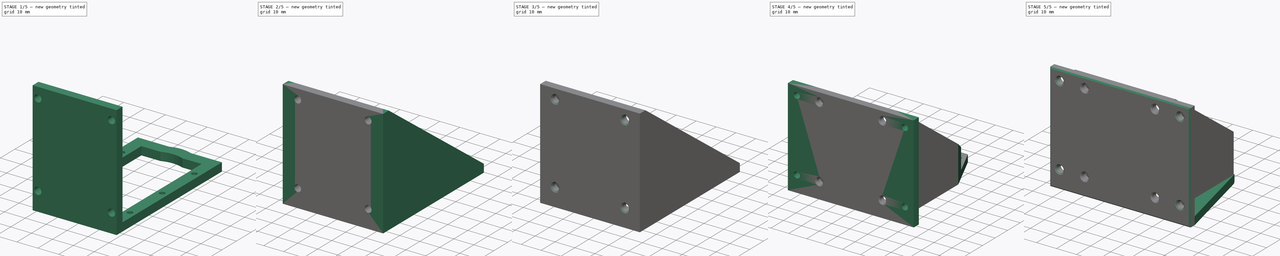
[diagram: build sequence overview — one tinted view per stage of 5, left to right]
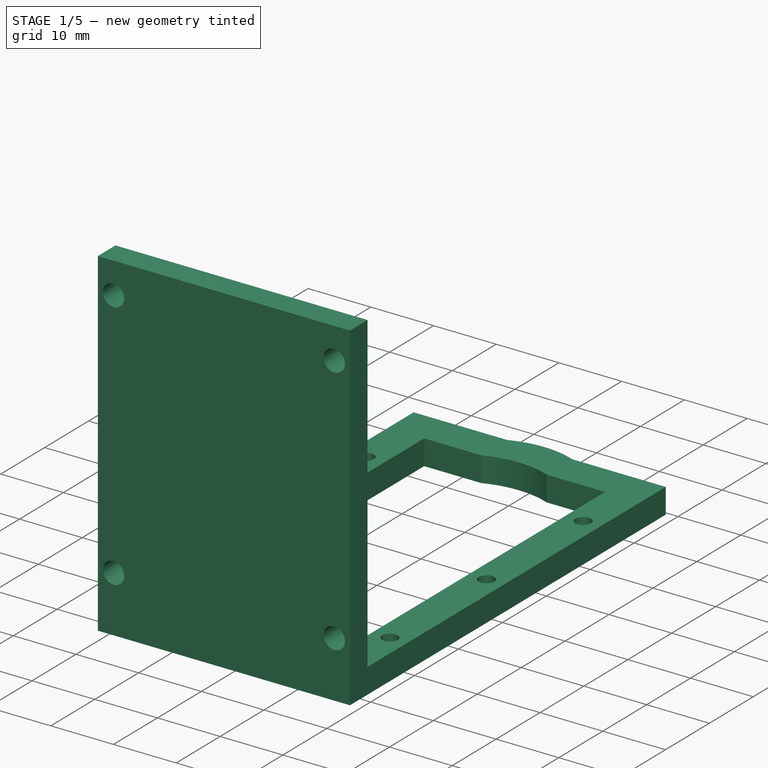
[diagram: stage 1 of 5 — iso view after this stage's code; geometry added in this stage tinted green]
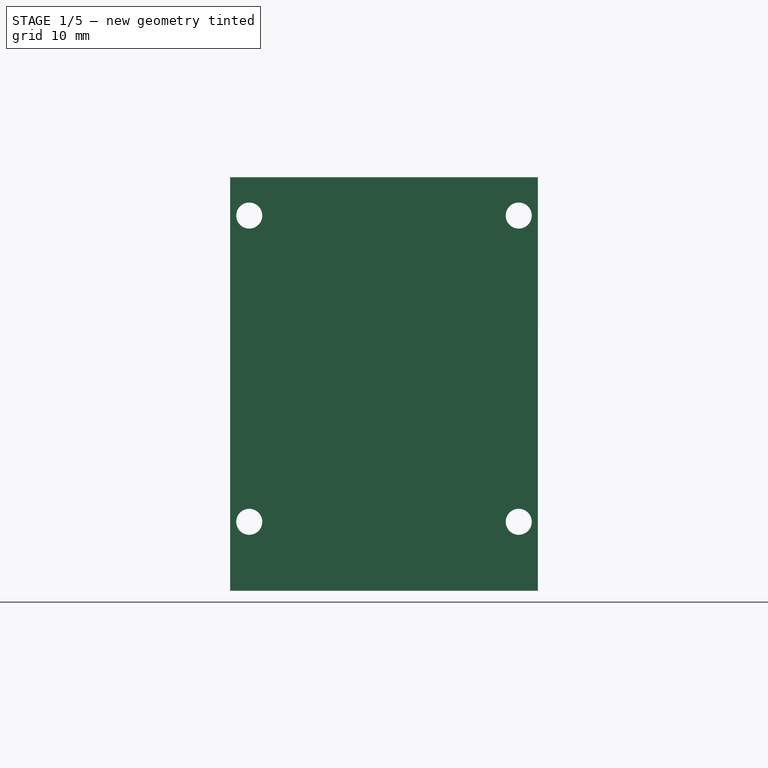
[diagram: stage 1 of 5 — front view after this stage's code; geometry added in this stage tinted green]
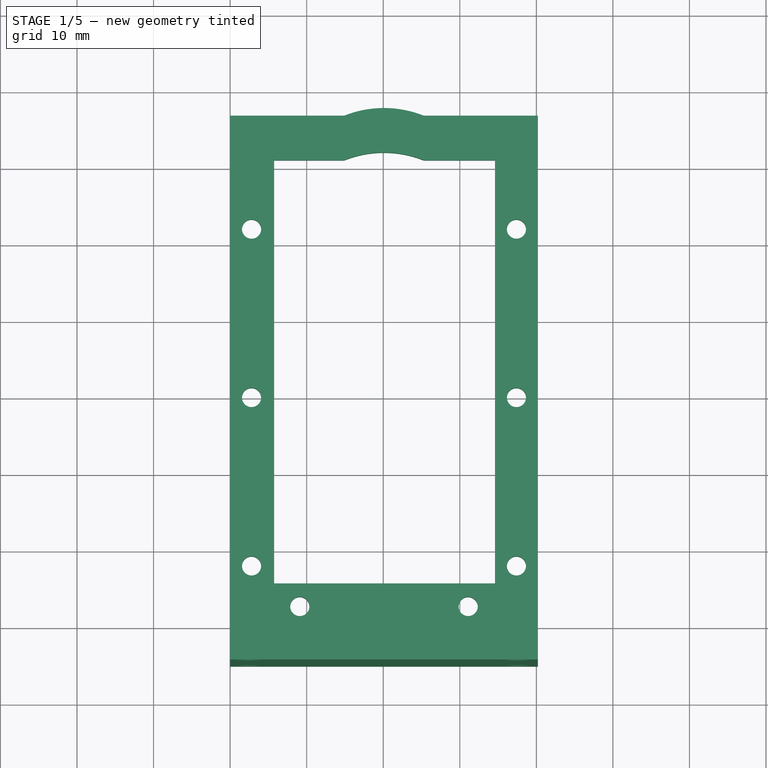
[diagram: stage 1 of 5 — top view after this stage's code; geometry added in this stage tinted green]
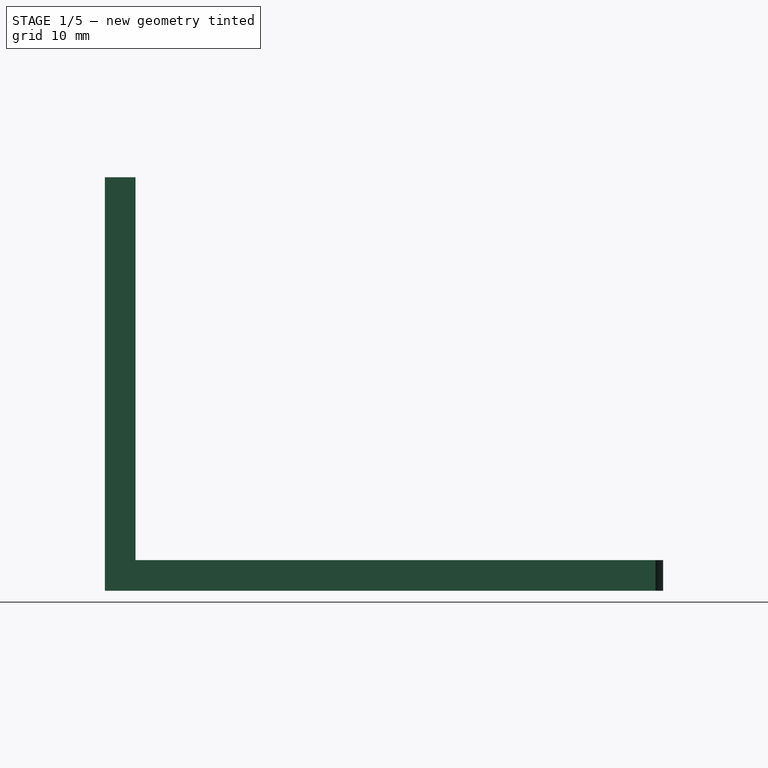
[diagram: stage 1 of 5 — right view after this stage's code; geometry added in this stage tinted green]
FCSTD DOCUMENT  (FreeCAD 1.0R39109 (Git))
Label: arm_base
License: All rights reserved
LicenseURL: https://en.wikipedia.org/wiki/All_rights_reserved
objects: Sketcher::SketchObject×17, PartDesign::Pad×12, PartDesign::Pocket×6, PartDesign::Chamfer×5, PartDesign::Hole×3, PartDesign::Body×1
note: 113 computed .brp shape members not serialized (recipe doc carries the construction recipe); baked Part::Feature solids carry a one-line shape summary decoded from their .brp

FEATURE [Sketcher::SketchObject] Sketch
  ArcFitTolerance = 1e-06
  AttachmentSupport = -> [XY_Plane]
  FullyConstrained = false
  MakeInternals = false
  MapMode = 5
  sketch-geometry (25):
    g0: LineSegment StartX=0 StartY=0 StartZ=0 EndX=40.2 EndY=0 EndZ=0
    g1: LineSegment StartX=40.2 StartY=0 StartZ=0 EndX=40.2 EndY=61.1 EndZ=0
    g2: LineSegment StartX=34.6 StartY=61.1 StartZ=0 EndX=25.2962 EndY=61.1 EndZ=0
    g3: LineSegment StartX=0 StartY=61.1 StartZ=0 EndX=0 EndY=0 EndZ=0
    g4: ArcOfCircle CenterX=20.1 CenterY=48.1 CenterZ=0 NormalX=0 NormalY=0 NormalZ=1 AngleXU=0 Radius=14 StartAngle=1.19055 EndAngle=1.95105
    g5: LineSegment [constr] StartX=20.1 StartY=5.82153 StartZ=0 EndX=34.6 EndY=5.82153 EndZ=0
    g6: LineSegment StartX=34.6 StartY=5.82153 StartZ=0 EndX=5.74912 EndY=5.82153 EndZ=0
    g7: LineSegment StartX=5.74912 StartY=5.82153 StartZ=0 EndX=5.74912 EndY=61.1 EndZ=0
    g8: LineSegment StartX=34.6 StartY=5.82153 StartZ=0 EndX=34.6 EndY=61.1 EndZ=0
    g9: Circle CenterX=31.1 CenterY=2.8 CenterZ=0 NormalX=0 NormalY=0 NormalZ=1 AngleXU=0 Radius=1.25
    g10: Circle CenterX=9.1 CenterY=2.8 CenterZ=0 NormalX=0 NormalY=0 NormalZ=1 AngleXU=0 Radius=1.25
    g11: Circle CenterX=2.8 CenterY=52.1 CenterZ=0 NormalX=0 NormalY=0 NormalZ=1 AngleXU=0 Radius=1.25
    g12: Circle CenterX=37.4 CenterY=52.1 CenterZ=0 NormalX=0 NormalY=0 NormalZ=1 AngleXU=0 Radius=1.25
    g13: Circle CenterX=2.8 CenterY=30.1 CenterZ=0 NormalX=0 NormalY=0 NormalZ=1 AngleXU=0 Radius=1.25
    g14: Circle CenterX=2.8 CenterY=8.1 CenterZ=0 NormalX=0 NormalY=0 NormalZ=1 AngleXU=0 Radius=1.25
    g15: Circle CenterX=37.4 CenterY=30.1 CenterZ=0 NormalX=0 NormalY=0 NormalZ=1 AngleXU=0 Radius=1.25
    g16: Circle CenterX=37.4 CenterY=8.1 CenterZ=0 NormalX=0 NormalY=0 NormalZ=1 AngleXU=0 Radius=1.25
    g17: LineSegment StartX=14.9038 StartY=61.1 StartZ=0 EndX=5.74912 EndY=61.1 EndZ=0
    g18: LineSegment [constr] StartX=5.74912 StartY=5.82153 StartZ=0 EndX=5.74912 EndY=0 EndZ=0
    g19: LineSegment [constr] StartX=5.74912 StartY=61.1 StartZ=0 EndX=5.74912 EndY=66.9215 EndZ=0
    g20: LineSegment StartX=14.9038 StartY=66.9215 StartZ=0 EndX=0 EndY=66.9215 EndZ=0
    g21: ArcOfCircle CenterX=20.1 CenterY=53.9215 CenterZ=0 NormalX=0 NormalY=0 NormalZ=1 AngleXU=0 Radius=14 StartAngle=1.19054 EndAngle=1.95105
    g22: LineSegment StartX=40.2 StartY=66.9215 StartZ=0 EndX=25.2962 EndY=66.9215 EndZ=0
    g23: LineSegment StartX=0 StartY=61.1 StartZ=0 EndX=0 EndY=66.9215 EndZ=0
    g24: LineSegment StartX=40.2 StartY=61.1 StartZ=0 EndX=40.2 EndY=66.9215 EndZ=0
  constraints (45):
    c: Coincident(g0,g1)
    c: Coincident(g3,g0)
    c: Horizontal(g0)
    c: Horizontal(g2)
    c: Vertical(g1)
    c: Vertical(g3)
    c: Distance(g1,g3) = 40.2
    c: Distance(g0,g3) = 61.1
    c: Coincident(g0,g-1)
    c: Diameter(g4) = 28
    c: Horizontal(g5)
    c: Coincident(g6,g5)
    c: Horizontal(g6)
    c: Coincident(g7,g6)
    c: Vertical(g7)
    c: Coincident(g8,g5)
    c: Vertical(g8)
    c: Diameter(g9) = 2.5
    c: Equal(g9,g10)
    c: Equal(g9,g12)
    c: Equal(g9,g11)
    c: Equal(g9,g13)
    c: Equal(g9,g14)
    c: Equal(g9,g16)
    c: Equal(g9,g15)
    c: Coincident(g4,g17)
    c: Coincident(g4,g2)
    c: Coincident(g18,g6)
    c: PointOnObject(g18,g0)
    c: Vertical(g18)
    c: Coincident(g19,g7)
    c: Vertical(g19)
    c: Equal(g19,g18)
    c: Horizontal(g22)
    c: Diameter(g21) = 28
    c: Coincident(g21,g20)
    c: Coincident(g21,g22)
    c: Coincident(g2,g8)
    c: Coincident(g17,g7)
    c: Coincident(g23,g3)
    c: Coincident(g23,g20)
    c: Vertical(g23)
    c: Coincident(g24,g1)
    c: Coincident(g24,g22)
    c: Vertical(g24)
FEATURE [PartDesign::Pad] Pad
  Direction = (0,0,1)
  Length = 4
  Length2 = 10
  Profile = -> Sketch
  ReferenceAxis = -> Sketch [N_Axis]
  Refine = true
  Suppressed = false
  Type = 0
FEATURE [PartDesign::Pad] Pad001
  BaseFeature = -> Pad
  Direction = (0,-1,0)
  Length = 1
  Length2 = 10
  Profile = -> Pad [Face1]
  Refine = true
  Suppressed = false
  Type = 0
FEATURE [PartDesign::Pad] Pad002
  BaseFeature = -> Pad001
  Direction = (0,-1,0)
  Length = 4
  Length2 = 10
  Profile = -> Pad001 [Face5]
  Refine = true
  Suppressed = false
  Type = 0
FEATURE [Sketcher::SketchObject] Sketch001
  ArcFitTolerance = 1e-06
  AttachmentSupport = -> [Pad002]
  ExternalGeometry = -> [Pad002]
  FullyConstrained = true
  MakeInternals = false
  MapMode = 5
  Placement = pos=(0,0,4) rot=(0,0,1;0rad)
  sketch-geometry (4):
    g0: LineSegment StartX=0 StartY=-5 StartZ=0 EndX=0 EndY=-1 EndZ=0
    g1: LineSegment StartX=40.2 StartY=-5 StartZ=0 EndX=40.2 EndY=-1 EndZ=0
    g2: LineSegment StartX=0 StartY=-5 StartZ=0 EndX=40.2 EndY=-5 EndZ=0
    g3: LineSegment StartX=40.2 StartY=-1 StartZ=0 EndX=0 EndY=-1 EndZ=0
  constraints (10):
    c: Coincident(g0,g-3)
    c: PointOnObject(g0,g-2)
    c: DistanceY(g0,g0) = 4
    c: Coincident(g1,g-3)
    c: Vertical(g1)
    c: Equal(g1,g0)
    c: Coincident(g2,g0)
    c: Coincident(g2,g1)
    c: Coincident(g3,g1)
    c: Coincident(g3,g0)
FEATURE [PartDesign::Pad] Pad003
  BaseFeature = -> Pad002
  Direction = (0,0,1)
  Length = 50
  Length2 = 10
  Profile = -> Sketch001
  ReferenceAxis = -> Sketch001 [N_Axis]
  Refine = true
  Suppressed = false
  Type = 0
FEATURE [Sketcher::SketchObject] Sketch002
  ArcFitTolerance = 1e-06
  AttachmentSupport = -> [Pad003]
  ExternalGeometry = -> [Pad003]
  FullyConstrained = false
  MakeInternals = false
  MapMode = 5
  Placement = pos=(0,-1,0) rot=(0,0.707107,0.707107;3.14159rad)
  sketch-geometry (12):
    g0: LineSegment [constr] StartX=-40.2 StartY=54 StartZ=0 EndX=-37.7 EndY=54 EndZ=0
    g1: LineSegment [constr] StartX=-37.7 StartY=54 StartZ=0 EndX=-37.7 EndY=49 EndZ=0
    g2: LineSegment [constr] StartX=0 StartY=54 StartZ=0 EndX=-2.5 EndY=54 EndZ=0
    g3: LineSegment [constr] StartX=-2.5 StartY=54 StartZ=0 EndX=-2.5 EndY=49 EndZ=0
    g4: LineSegment [constr] StartX=-40.2 StartY=4 StartZ=0 EndX=-40.2 EndY=9 EndZ=0
    g5: LineSegment [constr] StartX=-40.2 StartY=9 StartZ=0 EndX=-37.7 EndY=9 EndZ=0
    g6: LineSegment [constr] StartX=0 StartY=4 StartZ=0 EndX=0 EndY=9 EndZ=0
    g7: LineSegment [constr] StartX=0 StartY=9 StartZ=0 EndX=-2.5 EndY=9 EndZ=0
    g8: Circle CenterX=-37.7 CenterY=49 CenterZ=0 NormalX=0 NormalY=0 NormalZ=1 AngleXU=0 Radius=1.5
    g9: Circle CenterX=-2.5 CenterY=49 CenterZ=0 NormalX=0 NormalY=0 NormalZ=1 AngleXU=0 Radius=1.5
    g10: Circle CenterX=-37.7 CenterY=9 CenterZ=0 NormalX=0 NormalY=0 NormalZ=1 AngleXU=0 Radius=1.5
    g11: Circle CenterX=-2.5 CenterY=9 CenterZ=0 NormalX=0 NormalY=0 NormalZ=1 AngleXU=0 Radius=1.5
  constraints (29):
    c: Distance(g0) = 2.5
    c: Coincident(g0,g-3)
    c: PointOnObject(g0,g-3)
    c: Coincident(g1,g0)
    c: Vertical(g1)
    c: Coincident(g2,g-3)
    c: PointOnObject(g2,g-3)
    c: Coincident(g3,g2)
    c: Vertical(g3)
    c: Coincident(g4,g-4)
    c: Vertical(g4)
    c: Coincident(g5,g4)
    c: Horizontal(g5)
    c: Coincident(g6,g-4)
    c: Vertical(g6)
    c: Coincident(g7,g6)
    c: Horizontal(g7)
    c: Coincident(g8,g1)
    c: Diameter(g8) = 3
    c: Coincident(g9,g3)
    c: Coincident(g10,g5)
    c: Coincident(g11,g7)
    c: DistanceY(g1,g1) = 5
    c: Equal(g2,g0)
    c: Equal(g5,g0)
    c: Equal(g7,g2)
    c: Equal(g3,g1)
    c: Equal(g6,g3)
    c: Equal(g4,g1)
FEATURE [PartDesign::Hole] Hole
  BaseFeature = -> Pad003
  CustomThreadClearance = 0
  Depth = 25
  DepthType = 0
  Diameter = 3.4
  DrillForDepth = false
  DrillPoint = 1
  DrillPointAngle = 118
  HoleCutCountersinkAngle = 90
  HoleCutCustomValues = false
  HoleCutDepth = 0
  HoleCutDiameter = 6.1
  HoleCutType = 0
  ModelThread = false
  Profile = -> Sketch002
  Refine = true
  Suppressed = false
  Tapered = false
  TaperedAngle = 90
  TeardropAngle = 120
  TeardropRotation = 90
  ThreadClass = 0
  ThreadDepth = 25
  ThreadDepthType = 0
  ThreadDirection = 0
  ThreadFit = 0
  ThreadSize = 9
  ThreadType = 1
  Threaded = false
  UseCustomThreadClearance = false
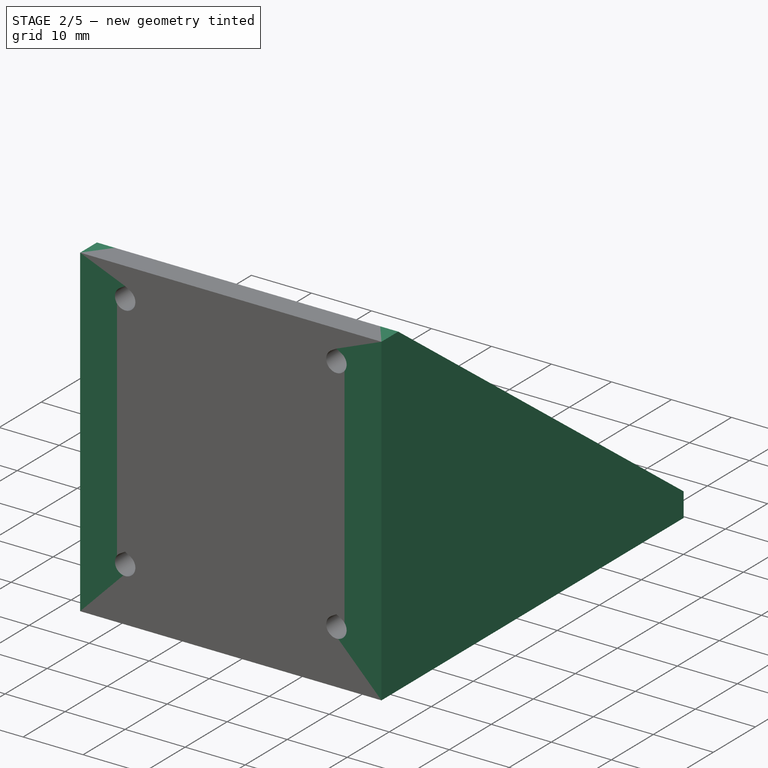
[diagram: stage 2 of 5 — iso view after this stage's code; geometry added in this stage tinted green]
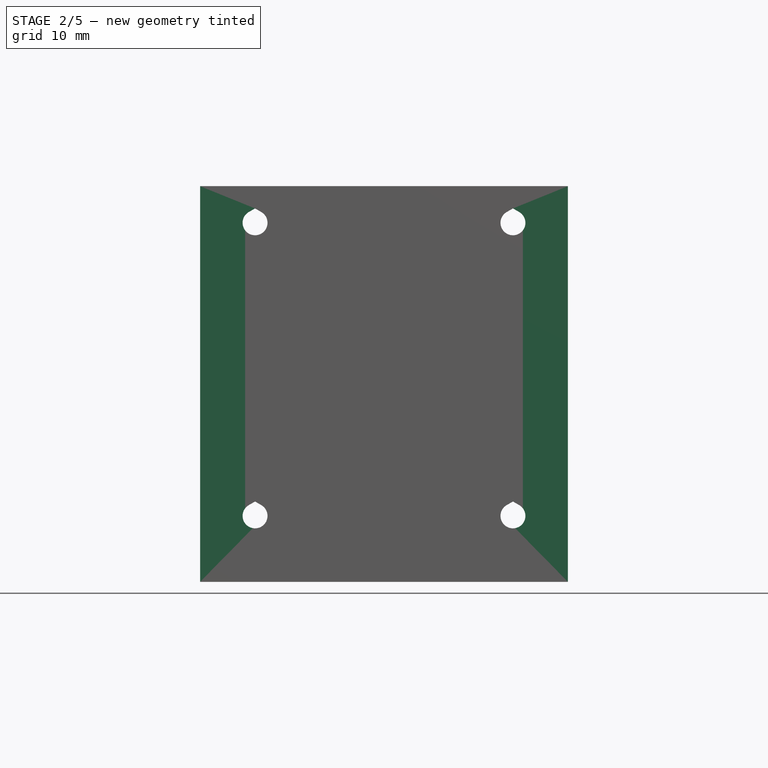
[diagram: stage 2 of 5 — front view after this stage's code; geometry added in this stage tinted green]
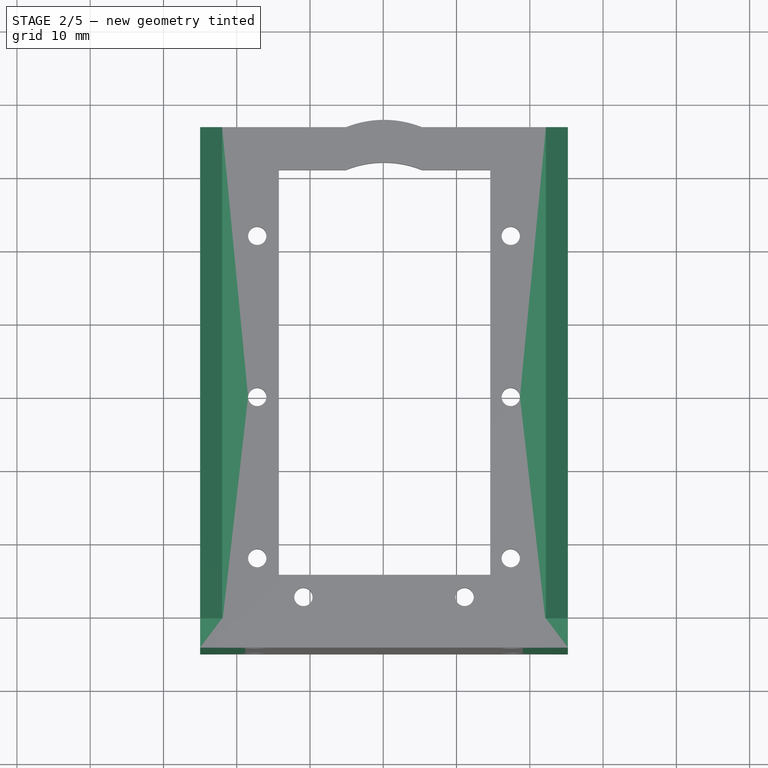
[diagram: stage 2 of 5 — top view after this stage's code; geometry added in this stage tinted green]
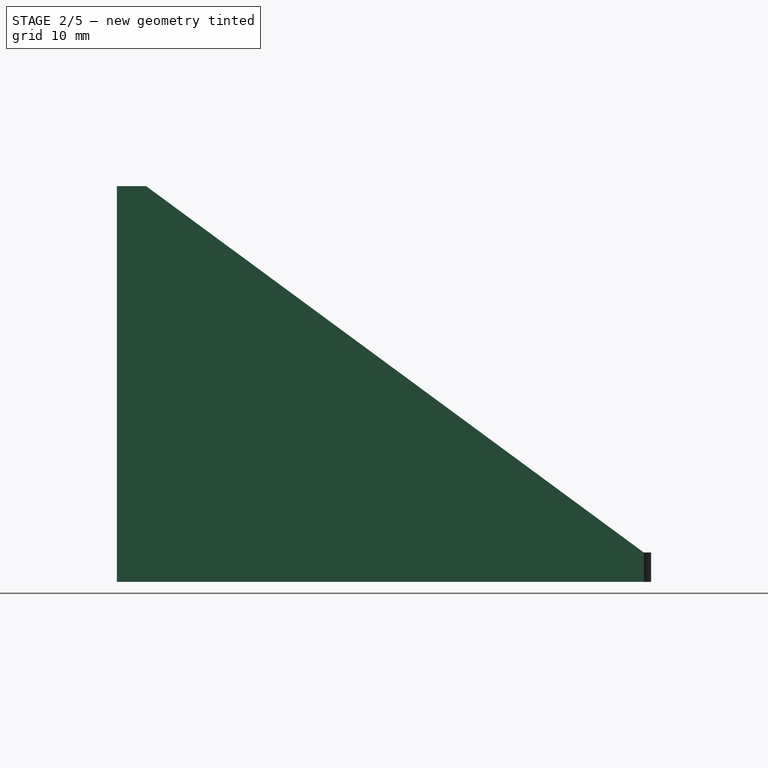
[diagram: stage 2 of 5 — right view after this stage's code; geometry added in this stage tinted green]
FEATURE [Sketcher::SketchObject] Sketch002_Teardrops
  ArcFitTolerance = 1e-06
  AttachmentSupport = -> [Sketch002]
  FullyConstrained = true
  MakeInternals = false
  MapMode = 2
  Placement = pos=(0,-1,0) rot=(0,0.707107,0.707107;3.14159rad)
  expr: Constraints[15] = Sketch002.Geometry[9].Center.x * 1 mm
  expr: Constraints[16] = Sketch002.Geometry[9].Center.y * 1 mm
  expr: Constraints[17] = Hole.Diameter
  expr: Constraints[18] = Hole.TeardropAngle
  expr: Constraints[19] = Hole.TeardropRotation
  expr: Constraints[25] = Sketch002.Geometry[10].Center.x * 1 mm
  expr: Constraints[26] = Sketch002.Geometry[10].Center.y * 1 mm
  expr: Constraints[27] = Hole.Diameter
  expr: Constraints[28] = Hole.TeardropAngle
  expr: Constraints[29] = Hole.TeardropRotation
  expr: Constraints[35] = Sketch002.Geometry[11].Center.x * 1 mm
  expr: Constraints[36] = Sketch002.Geometry[11].Center.y * 1 mm
  expr: Constraints[37] = Hole.Diameter
  expr: Constraints[38] = Hole.TeardropAngle
  expr: Constraints[39] = Hole.TeardropRotation
  expr: Constraints[5] = Sketch002.Geometry[8].Center.x * 1 mm
  expr: Constraints[6] = Sketch002.Geometry[8].Center.y * 1 mm
  expr: Constraints[7] = Hole.Diameter
  expr: Constraints[8] = Hole.TeardropAngle
  expr: Constraints[9] = Hole.TeardropRotation
  sketch-geometry (16):
    g0: ArcOfCircle CenterX=-37.7 CenterY=49 CenterZ=0 NormalX=0 NormalY=0 NormalZ=1 AngleXU=0 Radius=1.7 StartAngle=2.0944 EndAngle=7.33038
    g1: LineSegment StartX=-38.55 StartY=50.4722 StartZ=0 EndX=-37.7 EndY=50.963 EndZ=0
    g2: LineSegment StartX=-36.85 StartY=50.4722 StartZ=0 EndX=-37.7 EndY=50.963 EndZ=0
    g3: LineSegment [constr] StartX=-37.7 StartY=49 StartZ=0 EndX=-37.7 EndY=50.963 EndZ=0
    g4: ArcOfCircle CenterX=-2.5 CenterY=49 CenterZ=0 NormalX=0 NormalY=0 NormalZ=1 AngleXU=0 Radius=1.7 StartAngle=2.0944 EndAngle=7.33038
    g5: LineSegment StartX=-3.35 StartY=50.4722 StartZ=0 EndX=-2.5 EndY=50.963 EndZ=0
    g6: LineSegment StartX=-1.65 StartY=50.4722 StartZ=0 EndX=-2.5 EndY=50.963 EndZ=0
    g7: LineSegment [constr] StartX=-2.5 StartY=49 StartZ=0 EndX=-2.5 EndY=50.963 EndZ=0
    g8: ArcOfCircle CenterX=-37.7 CenterY=9 CenterZ=0 NormalX=0 NormalY=0 NormalZ=1 AngleXU=0 Radius=1.7 StartAngle=2.0944 EndAngle=7.33038
    g9: LineSegment StartX=-38.55 StartY=10.4722 StartZ=0 EndX=-37.7 EndY=10.963 EndZ=0
    g10: LineSegment StartX=-36.85 StartY=10.4722 StartZ=0 EndX=-37.7 EndY=10.963 EndZ=0
    g11: LineSegment [constr] StartX=-37.7 StartY=9 StartZ=0 EndX=-37.7 EndY=10.963 EndZ=0
    g12: ArcOfCircle CenterX=-2.5 CenterY=9 CenterZ=0 NormalX=0 NormalY=0 NormalZ=1 AngleXU=0 Radius=1.7 StartAngle=2.0944 EndAngle=7.33038
    g13: LineSegment StartX=-3.35 StartY=10.4722 StartZ=0 EndX=-2.5 EndY=10.963 EndZ=0
    g14: LineSegment StartX=-1.65 StartY=10.4722 StartZ=0 EndX=-2.5 EndY=10.963 EndZ=0
    g15: LineSegment [constr] StartX=-2.5 StartY=9 StartZ=0 EndX=-2.5 EndY=10.963 EndZ=0
  constraints (40):
    c: Coincident(g1,g2)
    c: Coincident(g1,g3)
    c: Coincident(g0,g3)
    c: Tangent(g0,g1) = 1.5708
    c: Tangent(g0,g2) = -1.5708
    c: DistanceX(g0) = -37.7
    c: DistanceY(g0) = 49
    c: Diameter(g0) = 3.4
    c: Angle(g1,g2) = 2.0944
    c: Angle(g3) = 1.5708
    c: Coincident(g5,g6)
    c: Coincident(g5,g7)
    c: Coincident(g4,g7)
    c: Tangent(g4,g5) = 1.5708
    c: Tangent(g4,g6) = -1.5708
    c: DistanceX(g4) = -2.5
    c: DistanceY(g4) = 49
    c: Diameter(g4) = 3.4
    c: Angle(g5,g6) = 2.0944
    c: Angle(g7) = 1.5708
    c: Coincident(g9,g10)
    c: Coincident(g9,g11)
    c: Coincident(g8,g11)
    c: Tangent(g8,g9) = 1.5708
    c: Tangent(g8,g10) = -1.5708
    c: DistanceX(g8) = -37.7
    c: DistanceY(g8) = 9
    c: Diameter(g8) = 3.4
    c: Angle(g9,g10) = 2.0944
    c: Angle(g11) = 1.5708
    c: Coincident(g13,g14)
    c: Coincident(g13,g15)
    c: Coincident(g12,g15)
    c: Tangent(g12,g13) = 1.5708
    c: Tangent(g12,g14) = -1.5708
    c: DistanceX(g12) = -2.5
    c: DistanceY(g12) = 9
    c: Diameter(g12) = 3.4
    c: Angle(g13,g14) = 2.0944
    c: Angle(g15) = 1.5708
FEATURE [PartDesign::Pocket] Hole_Teardrops
  BaseFeature = -> Hole
  Direction = (0,-1,2e-16)
  Length = 25
  Length2 = 5
  Profile = -> Sketch002_Teardrops
  ReferenceAxis = -> Sketch002_Teardrops [N_Axis]
  Refine = true
  Suppressed = false
  Type = 0
  expr: Length = Hole.Depth
  expr: Type = Hole.DepthType
FEATURE [PartDesign::Pad] Pad004
  BaseFeature = -> Hole_Teardrops
  Direction = (1,0,0)
  Length = 2
  Length2 = 10
  Profile = -> Hole_Teardrops [Face2]
  Refine = true
  Suppressed = false
  Type = 0
FEATURE [PartDesign::Pad] Pad005
  BaseFeature = -> Pad004
  Direction = (-1,0,0)
  Length = 2
  Length2 = 10
  Profile = -> Pad004 [Face3]
  Refine = true
  Suppressed = false
  Type = 0
FEATURE [Sketcher::SketchObject] Sketch003
  ArcFitTolerance = 1e-06
  AttachmentSupport = -> [Pad005]
  ExternalGeometry = -> [Pad005]
  FullyConstrained = true
  MakeInternals = false
  MapMode = 5
  Placement = pos=(42.2,0,0) rot=(0.57735,0.57735,0.57735;2.0944rad)
  sketch-geometry (5):
    g0: LineSegment StartX=-5 StartY=0 StartZ=0 EndX=-5 EndY=54 EndZ=0
    g1: LineSegment StartX=-5 StartY=54 StartZ=0 EndX=-1 EndY=54 EndZ=0
    g2: LineSegment StartX=-5 StartY=0 StartZ=0 EndX=66.9215 EndY=0 EndZ=0
    g3: LineSegment StartX=66.9215 StartY=0 StartZ=0 EndX=66.9215 EndY=4 EndZ=0
    g4: LineSegment StartX=66.9215 StartY=4 StartZ=0 EndX=-1 EndY=54 EndZ=0
  constraints (10):
    c: Coincident(g0,g-4)
    c: Coincident(g0,g-5)
    c: Coincident(g1,g0)
    c: Coincident(g1,g-5)
    c: Coincident(g2,g0)
    c: Coincident(g2,g-6)
    c: Coincident(g3,g2)
    c: Coincident(g3,g-6)
    c: Coincident(g4,g3)
    c: Coincident(g4,g1)
FEATURE [PartDesign::Pad] Pad006
  BaseFeature = -> Pad005
  Direction = (1,0,0)
  Length = 3
  Length2 = 10
  Profile = -> Sketch003
  ReferenceAxis = -> Sketch003 [N_Axis]
  Refine = true
  Suppressed = false
  Type = 0
FEATURE [Sketcher::SketchObject] Sketch004
  ArcFitTolerance = 1e-06
  AttachmentSupport = -> [Pad006]
  ExternalGeometry = -> [Pad006]
  FullyConstrained = true
  MakeInternals = false
  MapMode = 5
  Placement = pos=(-2,0,0) rot=(0.57735,-0.57735,-0.57735;2.0944rad)
  sketch-geometry (5):
    g0: LineSegment StartX=5 StartY=54 StartZ=0 EndX=1 EndY=54 EndZ=0
    g1: LineSegment StartX=5 StartY=54 StartZ=0 EndX=5 EndY=0 EndZ=0
    g2: LineSegment StartX=5 StartY=0 StartZ=0 EndX=-66.9215 EndY=0 EndZ=0
    g3: LineSegment StartX=-66.9215 StartY=0 StartZ=0 EndX=-66.9215 EndY=4 EndZ=0
    g4: LineSegment StartX=-66.9215 StartY=4 StartZ=0 EndX=1 EndY=54 EndZ=0
  constraints (10):
    c: Coincident(g0,g-6)
    c: Coincident(g0,g-6)
    c: Coincident(g1,g0)
    c: Coincident(g1,g-5)
    c: Coincident(g2,g1)
    c: Coincident(g2,g-4)
    c: Coincident(g3,g2)
    c: Coincident(g3,g-4)
    c: Coincident(g4,g3)
    c: Coincident(g4,g0)
FEATURE [PartDesign::Pad] Pad007
  BaseFeature = -> Pad006
  Direction = (-1,0,0)
  Length = 3
  Length2 = 10
  Profile = -> Sketch004
  ReferenceAxis = -> Sketch004 [N_Axis]
  Refine = true
  Suppressed = false
  Type = 0
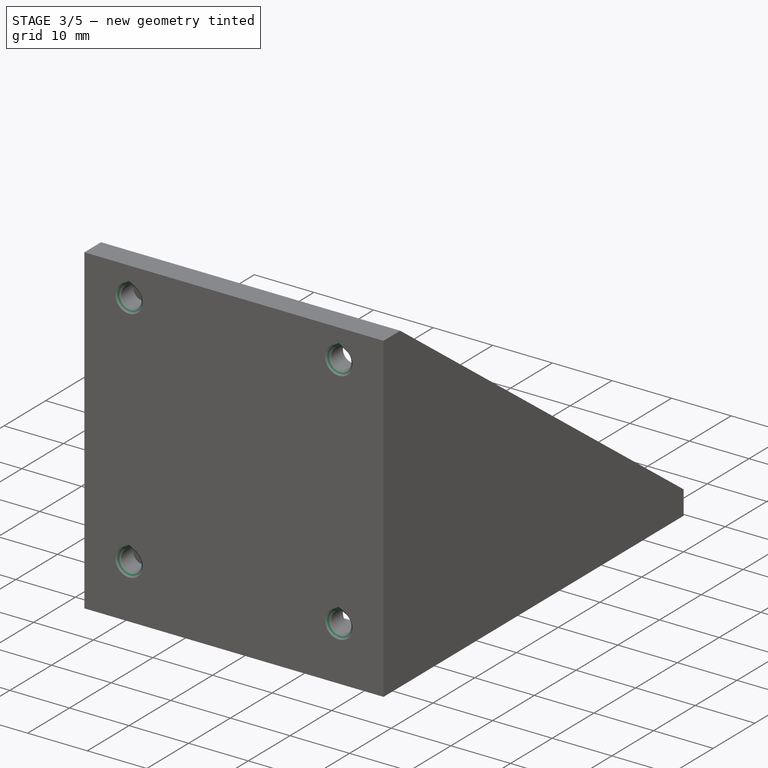
[diagram: stage 3 of 5 — iso view after this stage's code; geometry added in this stage tinted green]
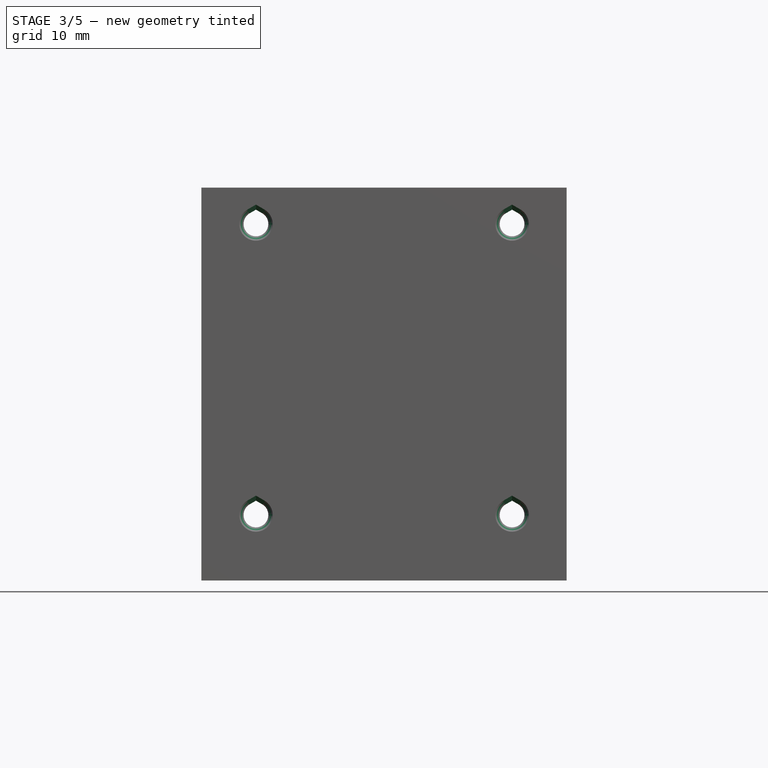
[diagram: stage 3 of 5 — front view after this stage's code; geometry added in this stage tinted green]
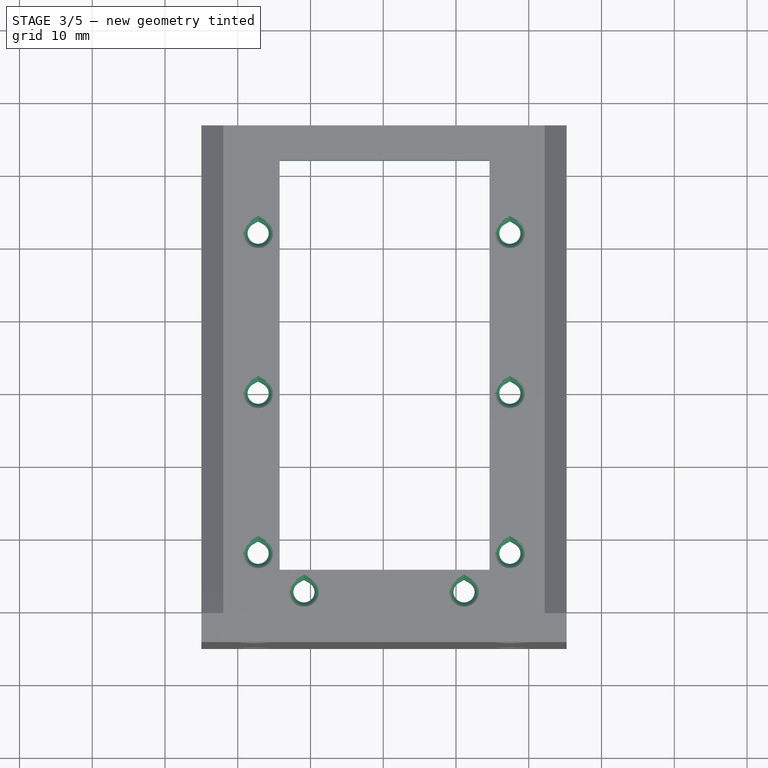
[diagram: stage 3 of 5 — top view after this stage's code; geometry added in this stage tinted green]
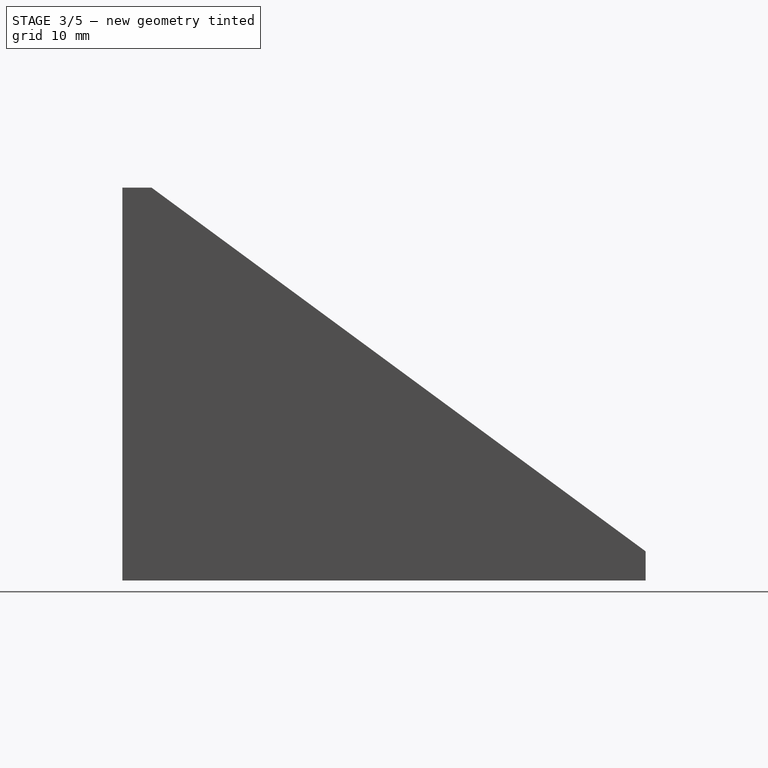
[diagram: stage 3 of 5 — right view after this stage's code; geometry added in this stage tinted green]
FEATURE [Sketcher::SketchObject] Sketch005
  ArcFitTolerance = 1e-06
  AttachmentSupport = -> [Pad007]
  ExternalGeometry = -> [Pad007]
  FullyConstrained = false
  MakeInternals = false
  MapMode = 5
  Placement = pos=(0,0,0) rot=(1,0,0;3.14159rad)
  sketch-geometry (16):
    g0: Circle CenterX=9.1 CenterY=-2.8 CenterZ=0 NormalX=0 NormalY=0 NormalZ=1 AngleXU=0 Radius=0.5
    g1: Circle CenterX=9.1 CenterY=-2.8 CenterZ=0 NormalX=0 NormalY=0 NormalZ=1 AngleXU=0 Radius=1.25
    g2: Circle CenterX=2.8 CenterY=-8.1 CenterZ=0 NormalX=0 NormalY=0 NormalZ=1 AngleXU=0 Radius=1.25
    g3: Circle CenterX=2.8 CenterY=-8.1 CenterZ=0 NormalX=0 NormalY=0 NormalZ=1 AngleXU=0 Radius=0.5
    g4: Circle CenterX=2.8 CenterY=-30.1 CenterZ=0 NormalX=0 NormalY=0 NormalZ=1 AngleXU=0 Radius=1.25
    g5: Circle CenterX=2.8 CenterY=-30.1 CenterZ=0 NormalX=0 NormalY=0 NormalZ=1 AngleXU=0 Radius=0.5
    g6: Circle CenterX=2.8 CenterY=-52.1 CenterZ=0 NormalX=0 NormalY=0 NormalZ=1 AngleXU=0 Radius=1.25
    g7: Circle CenterX=2.8 CenterY=-52.1 CenterZ=0 NormalX=0 NormalY=0 NormalZ=1 AngleXU=0 Radius=0.5
    g8: Circle CenterX=31.1 CenterY=-2.8 CenterZ=0 NormalX=0 NormalY=0 NormalZ=1 AngleXU=0 Radius=1.25
    g9: Circle CenterX=31.1 CenterY=-2.8 CenterZ=0 NormalX=0 NormalY=0 NormalZ=1 AngleXU=0 Radius=0.5
    g10: Circle CenterX=37.4 CenterY=-8.1 CenterZ=0 NormalX=0 NormalY=0 NormalZ=1 AngleXU=0 Radius=1.25
    g11: Circle CenterX=37.4 CenterY=-8.1 CenterZ=0 NormalX=0 NormalY=0 NormalZ=1 AngleXU=0 Radius=0.5
    g12: Circle CenterX=37.4 CenterY=-30.1 CenterZ=0 NormalX=0 NormalY=0 NormalZ=1 AngleXU=0 Radius=1.25
    g13: Circle CenterX=37.4 CenterY=-30.1 CenterZ=0 NormalX=0 NormalY=0 NormalZ=1 AngleXU=0 Radius=0.5
    g14: Circle CenterX=37.4 CenterY=-52.1 CenterZ=0 NormalX=0 NormalY=0 NormalZ=1 AngleXU=0 Radius=0.5
    g15: Circle CenterX=37.4 CenterY=-52.1 CenterZ=0 NormalX=0 NormalY=0 NormalZ=1 AngleXU=0 Radius=1.25
  constraints (17):
    c: Diameter(g0) = 1
    c: Coincident(g0,g-3)
    c: Coincident(g1,g0)
    c: Diameter(g3) = 1
    c: Coincident(g2,g3)
    c: Diameter(g5) = 1
    c: Diameter(g7) = 1
    c: Coincident(g4,g5)
    c: Coincident(g6,g7)
    c: Diameter(g9) = 1
    c: Coincident(g8,g9)
    c: Diameter(g11) = 1
    c: Coincident(g10,g11)
    c: Diameter(g13) = 1
    c: Diameter(g14) = 1
    c: Coincident(g12,g13)
    c: Coincident(g15,g14)
FEATURE [PartDesign::Pad] Pad008
  BaseFeature = -> Pad007
  Direction = (0,0,-1)
  Length = 10
  Length2 = 10
  Profile = -> Sketch005
  ReferenceAxis = -> Sketch005 [N_Axis]
  Refine = true
  Reversed = true
  Suppressed = false
  Type = 3
  UpToFace = -> Pad007 [Face4]
FEATURE [Sketcher::SketchObject] Sketch006
  ArcFitTolerance = 1e-06
  AttachmentSupport = -> [Pad008]
  ExternalGeometry = -> [Pad008]
  FullyConstrained = true
  MakeInternals = false
  MapMode = 5
  Placement = pos=(0,0,0) rot=(1,0,0;3.14159rad)
  sketch-geometry (8):
    g0: Circle CenterX=2.8 CenterY=-8.1 CenterZ=0 NormalX=0 NormalY=0 NormalZ=1 AngleXU=0 Radius=1.25
    g1: Circle CenterX=2.8 CenterY=-30.1 CenterZ=0 NormalX=0 NormalY=0 NormalZ=1 AngleXU=0 Radius=1.25
    g2: Circle CenterX=2.8 CenterY=-52.1 CenterZ=0 NormalX=0 NormalY=0 NormalZ=1 AngleXU=0 Radius=1.25
    g3: Circle CenterX=37.4 CenterY=-52.1 CenterZ=0 NormalX=0 NormalY=0 NormalZ=1 AngleXU=0 Radius=1.25
    g4: Circle CenterX=37.4 CenterY=-30.1 CenterZ=0 NormalX=0 NormalY=0 NormalZ=1 AngleXU=0 Radius=1.25
    g5: Circle CenterX=37.4 CenterY=-8.1 CenterZ=0 NormalX=0 NormalY=0 NormalZ=1 AngleXU=0 Radius=1.25
    g6: Circle CenterX=31.1 CenterY=-2.8 CenterZ=0 NormalX=0 NormalY=0 NormalZ=1 AngleXU=0 Radius=1.25
    g7: Circle CenterX=9.1 CenterY=-2.8 CenterZ=0 NormalX=0 NormalY=0 NormalZ=1 AngleXU=0 Radius=1.25
  constraints (16):
    c: Diameter(g0) = 2.5
    c: Coincident(g0,g-4)
    c: Coincident(g1,g-5)
    c: Coincident(g2,g-6)
    c: Coincident(g3,g-7)
    c: Coincident(g4,g-8)
    c: Coincident(g5,g-10)
    c: Coincident(g6,g-9)
    c: Coincident(g7,g-3)
    c: Equal(g7,g0)
    c: Equal(g6,g7)
    c: Equal(g5,g6)
    c: Equal(g4,g5)
    c: Equal(g1,g0)
    c: Equal(g2,g1)
    c: Equal(g3,g4)
FEATURE [PartDesign::Hole] Hole001
  BaseFeature = -> Pad008
  CustomThreadClearance = 0
  Depth = 25
  DepthType = 0
  Diameter = 2.9
  DrillForDepth = false
  DrillPoint = 1
  DrillPointAngle = 118
  HoleCutCountersinkAngle = 90
  HoleCutCustomValues = false
  HoleCutDepth = 0
  HoleCutDiameter = 6.1
  HoleCutType = 0
  ModelThread = false
  Profile = -> Sketch006
  Refine = true
  Suppressed = false
  Tapered = false
  TaperedAngle = 90
  TeardropAngle = 120
  TeardropRotation = 90
  ThreadClass = 0
  ThreadDepth = 25
  ThreadDepthType = 0
  ThreadDirection = 0
  ThreadFit = 0
  ThreadSize = 8
  ThreadType = 1
  Threaded = false
  UseCustomThreadClearance = false
FEATURE [Sketcher::SketchObject] Sketch006_Teardrops
  ArcFitTolerance = 1e-06
  AttachmentSupport = -> [Sketch006]
  FullyConstrained = false
  MakeInternals = false
  MapMode = 2
  Placement = pos=(0,0,0) rot=(1,0,0;3.14159rad)
  expr: Constraints[0] = Hole001.TeardropRotation
  expr: Constraints[1] = Hole001.TeardropRotation
  expr: Constraints[2] = Hole001.TeardropRotation
  expr: Constraints[3] = Hole001.TeardropRotation
  expr: Constraints[4] = Hole001.TeardropRotation
  expr: Constraints[5] = Hole001.TeardropRotation
  expr: Constraints[6] = Hole001.TeardropRotation
  expr: Constraints[7] = Hole001.TeardropRotation
  sketch-geometry (34):
    g0: LineSegment [constr] StartX=2.8 StartY=-8.1 StartZ=0 EndX=2.8 EndY=-6.42568 EndZ=0
    g1: LineSegment [constr] StartX=2.8 StartY=-30.1 StartZ=0 EndX=2.8 EndY=-28.4257 EndZ=0
    g2: LineSegment [constr] StartX=2.8 StartY=-52.1 StartZ=0 EndX=2.8 EndY=-50.4257 EndZ=0
    g3: LineSegment [constr] StartX=37.4 StartY=-52.1 StartZ=0 EndX=37.4 EndY=-50.4257 EndZ=0
    g4: LineSegment [constr] StartX=37.4 StartY=-30.1 StartZ=0 EndX=37.4 EndY=-28.4257 EndZ=0
    g5: LineSegment [constr] StartX=37.4 StartY=-8.1 StartZ=0 EndX=37.4 EndY=-6.42568 EndZ=0
    g6: LineSegment [constr] StartX=31.1 StartY=-2.8 StartZ=0 EndX=31.1 EndY=-1.12568 EndZ=0
    g7: LineSegment [constr] StartX=9.1 StartY=-2.8 StartZ=0 EndX=9.1 EndY=-1.12568 EndZ=0
    g8: ArcOfCircle CenterX=31.1 CenterY=-2.8 CenterZ=0 NormalX=0 NormalY=0 NormalZ=1 AngleXU=0 Radius=1.45 StartAngle=5.23599 EndAngle=10.472
    g9: LineSegment StartX=30.375 StartY=-4.05574 StartZ=0 EndX=31.1 EndY=-4.47432 EndZ=0
    g10: LineSegment StartX=31.825 StartY=-4.05574 StartZ=0 EndX=31.1 EndY=-4.47432 EndZ=0
    g11: ArcOfCircle CenterX=9.1 CenterY=-2.8 CenterZ=0 NormalX=0 NormalY=0 NormalZ=1 AngleXU=0 Radius=1.45 StartAngle=5.23599 EndAngle=10.472
    g12: LineSegment StartX=8.375 StartY=-4.05574 StartZ=0 EndX=9.1 EndY=-4.47432 EndZ=0
    g13: LineSegment StartX=9.825 StartY=-4.05574 StartZ=0 EndX=9.1 EndY=-4.47432 EndZ=0
    g14: LineSegment [constr] StartX=2.8 StartY=-30.1 StartZ=0 EndX=37.4 EndY=-30.1 EndZ=0
    g15: LineSegment [constr] StartX=20.1 StartY=-30.1 StartZ=0 EndX=20.1 EndY=-24.2162 EndZ=0
    g16: ArcOfCircle CenterX=37.4 CenterY=-52.1 CenterZ=0 NormalX=0 NormalY=0 NormalZ=1 AngleXU=0 Radius=1.45 StartAngle=5.23599 EndAngle=10.472
    g17: LineSegment StartX=38.125 StartY=-53.3557 StartZ=0 EndX=37.4 EndY=-53.7743 EndZ=0
    g18: LineSegment StartX=36.675 StartY=-53.3557 StartZ=0 EndX=37.4 EndY=-53.7743 EndZ=0
    g19: ArcOfCircle CenterX=37.4 CenterY=-30.1 CenterZ=0 NormalX=0 NormalY=0 NormalZ=1 AngleXU=0 Radius=1.45 StartAngle=5.23599 EndAngle=10.472
    g20: LineSegment StartX=38.125 StartY=-31.3557 StartZ=0 EndX=37.4 EndY=-31.7743 EndZ=0
    g21: LineSegment StartX=36.675 StartY=-31.3557 StartZ=0 EndX=37.4 EndY=-31.7743 EndZ=0
    g22: ArcOfCircle CenterX=37.4 CenterY=-8.1 CenterZ=0 NormalX=0 NormalY=0 NormalZ=1 AngleXU=0 Radius=1.45 StartAngle=5.23599 EndAngle=10.472
    g23: LineSegment StartX=38.125 StartY=-9.35574 StartZ=0 EndX=37.4 EndY=-9.77432 EndZ=0
    g24: LineSegment StartX=36.675 StartY=-9.35574 StartZ=0 EndX=37.4 EndY=-9.77432 EndZ=0
    g25: ArcOfCircle CenterX=2.8 CenterY=-8.1 CenterZ=0 NormalX=0 NormalY=0 NormalZ=1 AngleXU=0 Radius=1.45 StartAngle=5.23599 EndAngle=10.472
    g26: LineSegment StartX=3.525 StartY=-9.35574 StartZ=0 EndX=2.8 EndY=-9.77432 EndZ=0
    g27: LineSegment StartX=2.075 StartY=-9.35574 StartZ=0 EndX=2.8 EndY=-9.77432 EndZ=0
    g28: ArcOfCircle CenterX=2.8 CenterY=-30.1 CenterZ=0 NormalX=0 NormalY=0 NormalZ=1 AngleXU=0 Radius=1.45 StartAngle=5.23599 EndAngle=10.472
    g29: LineSegment StartX=3.525 StartY=-31.3557 StartZ=0 EndX=2.8 EndY=-31.7743 EndZ=0
    g30: LineSegment StartX=2.075 StartY=-31.3557 StartZ=0 EndX=2.8 EndY=-31.7743 EndZ=0
    g31: ArcOfCircle CenterX=2.8 CenterY=-52.1 CenterZ=0 NormalX=0 NormalY=0 NormalZ=1 AngleXU=0 Radius=1.45 StartAngle=5.23599 EndAngle=10.472
    g32: LineSegment StartX=3.525 StartY=-53.3557 StartZ=0 EndX=2.8 EndY=-53.7743 EndZ=0
    g33: LineSegment StartX=2.075 StartY=-53.3557 StartZ=0 EndX=2.8 EndY=-53.7743 EndZ=0
  constraints (50):
    c: Angle(g0) = 1.5708
    c: Angle(g1) = 1.5708
    c: Angle(g2) = 1.5708
    c: Angle(g3) = 1.5708
    c: Angle(g4) = 1.5708
    c: Angle(g5) = 1.5708
    c: Angle(g6) = 1.5708
    c: Angle(g7) = 1.5708
    c: Coincident(g10,g9)
    c: Tangent(g8,g10) = 1.5708
    c: Tangent(g8,g9) = -1.5708
    c: Diameter(g8) = 2.9
    c: Angle(g10,g9) = 2.0944
    c: Coincident(g13,g12)
    c: Tangent(g11,g13) = 1.5708
    c: Tangent(g11,g12) = -1.5708
    c: Diameter(g11) = 2.9
    c: Angle(g13,g12) = 2.0944
    c: Vertical(g15)
    c: Symmetric(g14,g14,g15)
    c: Coincident(g17,g18)
    c: Tangent(g16,g17) = 1.5708
    c: Tangent(g16,g18) = -1.5708
    c: Diameter(g16) = 2.9
    c: Angle(g17,g18) = 2.0944
    c: Coincident(g20,g21)
    c: Tangent(g19,g20) = 1.5708
    c: Tangent(g19,g21) = -1.5708
    c: Diameter(g19) = 2.9
    c: Angle(g20,g21) = 2.0944
    c: Coincident(g23,g24)
    c: Tangent(g22,g23) = 1.5708
    c: Tangent(g22,g24) = -1.5708
    c: Diameter(g22) = 2.9
    c: Angle(g23,g24) = 2.0944
    c: Coincident(g26,g27)
    c: Tangent(g25,g26) = 1.5708
    c: Tangent(g25,g27) = -1.5708
    c: Diameter(g25) = 2.9
    c: Angle(g26,g27) = 2.0944
    c: Coincident(g29,g30)
    c: Tangent(g28,g29) = 1.5708
    c: Tangent(g28,g30) = -1.5708
    c: Diameter(g28) = 2.9
    c: Angle(g29,g30) = 2.0944
    c: Coincident(g32,g33)
    c: Tangent(g31,g32) = 1.5708
    c: Tangent(g31,g33) = -1.5708
    c: Diameter(g31) = 2.9
    c: Angle(g32,g33) = 2.0944
FEATURE [PartDesign::Pocket] Pocket
  BaseFeature = -> Hole001
  Direction = (0,0,1)
  Length = 25
  Length2 = 5
  Profile = -> Sketch006_Teardrops
  ReferenceAxis = -> Sketch006_Teardrops [N_Axis]
  Refine = true
  Suppressed = false
  Type = 0
FEATURE [PartDesign::Chamfer] Chamfer
  Angle = 45
  Base = -> Pocket [Edge142,Edge156,Edge163,Edge149,Edge68,Edge60,Edge64,Edge56]
  BaseFeature = -> Pocket
  ChamferType = 0
  FlipDirection = false
  Refine = true
  Size = 0.6
  Size2 = 1
  SupportTransform = false
  Suppressed = false
  UseAllEdges = false
FEATURE [PartDesign::Chamfer] Chamfer001
  Angle = 45
  Base = -> Chamfer [Edge132,Edge125,Edge146,Edge153,Edge157,Edge187,Edge139,Edge168,Edge35,Edge39,Edge47,Edge51,Edge55,Edge69,Edge43,Edge59]
  BaseFeature = -> Chamfer
  ChamferType = 0
  FlipDirection = false
  Refine = true
  Size = 0.6
  Size2 = 1
  SupportTransform = false
  Suppressed = false
  UseAllEdges = false
FEATURE [Sketcher::SketchObject] Sketch007
  ArcFitTolerance = 1e-06
  FullyConstrained = false
  MakeInternals = false
  MapMode = 5
  Placement = pos=(0,0,4) rot=(0,0,1;0rad)
  sketch-geometry (10):
    g0: LineSegment StartX=14.9038 StartY=66.9215 StartZ=0 EndX=14.9038 EndY=68.9215 EndZ=0
    g1: LineSegment StartX=25.2962 StartY=66.9215 StartZ=0 EndX=25.2962 EndY=68.9215 EndZ=0
    g2: LineSegment StartX=14.9038 StartY=66.9215 StartZ=0 EndX=25.2962 EndY=66.9215 EndZ=0
    g3: LineSegment StartX=25.2962 StartY=68.9215 StartZ=0 EndX=14.9038 EndY=68.9215 EndZ=0
    g4: LineSegment [constr] StartX=20.1 StartY=66.9215 StartZ=0 EndX=20.1 EndY=62.1 EndZ=0
    g5: LineSegment StartX=20.1 StartY=62.1 StartZ=0 EndX=5.74912 EndY=62.1 EndZ=0
    g6: LineSegment StartX=5.74912 StartY=61.1 StartZ=0 EndX=5.74912 EndY=62.1 EndZ=0
    g7: LineSegment StartX=34.6 StartY=61.1 StartZ=0 EndX=34.6 EndY=62.1 EndZ=0
    g8: LineSegment StartX=20.1 StartY=62.1 StartZ=0 EndX=34.6 EndY=62.1 EndZ=0
    g9: LineSegment StartX=5.74912 StartY=61.1 StartZ=0 EndX=34.6 EndY=61.1 EndZ=0
  constraints (25):
    c: Vertical(g0)
    c: Coincident(g1,g-5)
    c: Vertical(g1)
    c: DistanceY(g0,g0) = 2
    c: Equal(g1,g0)
    c: Coincident(g2,g0)
    c: Coincident(g2,g1)
    c: Horizontal(g2)
    c: Coincident(g3,g1)
    c: Coincident(g3,g0)
    c: Symmetric(g2,g2,g4)
    c: PointOnObject(g4,g-3)
    c: Vertical(g4)
    c: Coincident(g5,g4)
    c: Horizontal(g5)
    c: Coincident(g6,g-6)
    c: Vertical(g6)
    c: Coincident(g6,g5)
    c: Coincident(g7,g-7)
    c: Vertical(g7)
    c: Coincident(g8,g4)
    c: Horizontal(g8)
    c: Coincident(g7,g8)
    c: Coincident(g9,g6)
    c: Coincident(g9,g7)
FEATURE [PartDesign::Pocket] Pocket001
  BaseFeature = -> Chamfer001
  Direction = (0,0,-1)
  Length = 14
  Length2 = 5
  Profile = -> Sketch007
  ReferenceAxis = -> Sketch007 [N_Axis]
  Refine = true
  Suppressed = false
  Type = 0
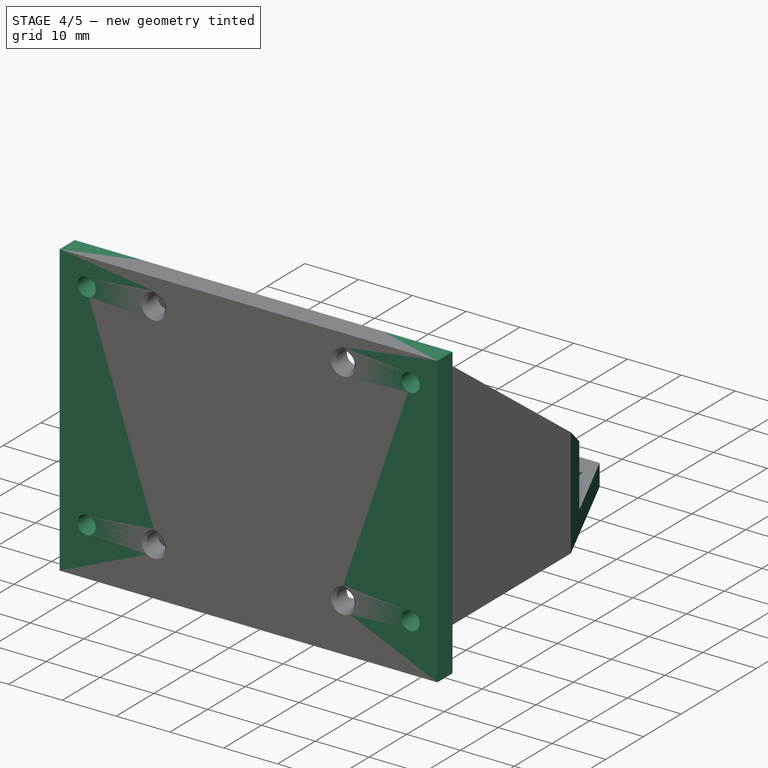
[diagram: stage 4 of 5 — iso view after this stage's code; geometry added in this stage tinted green]
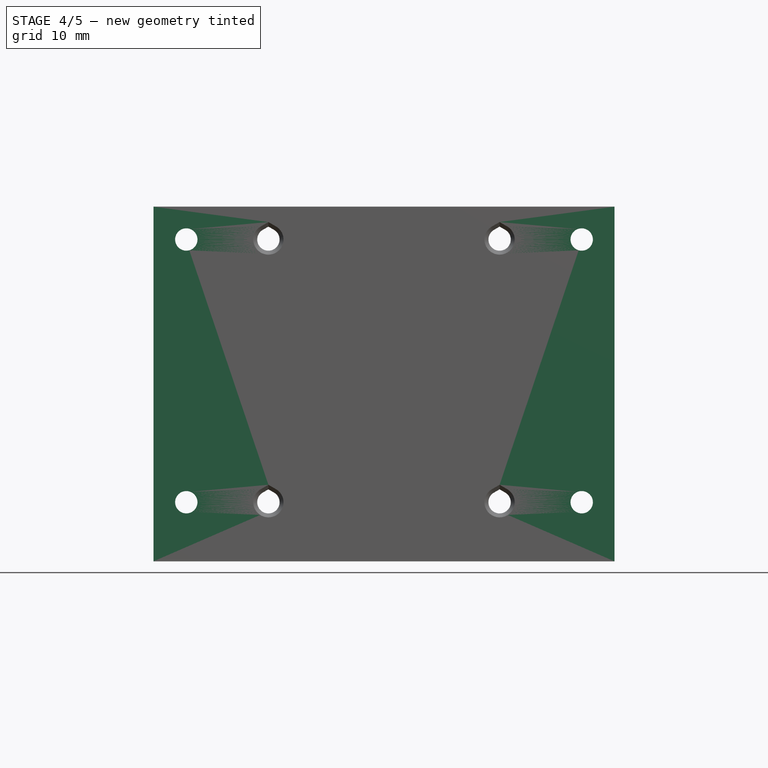
[diagram: stage 4 of 5 — front view after this stage's code; geometry added in this stage tinted green]
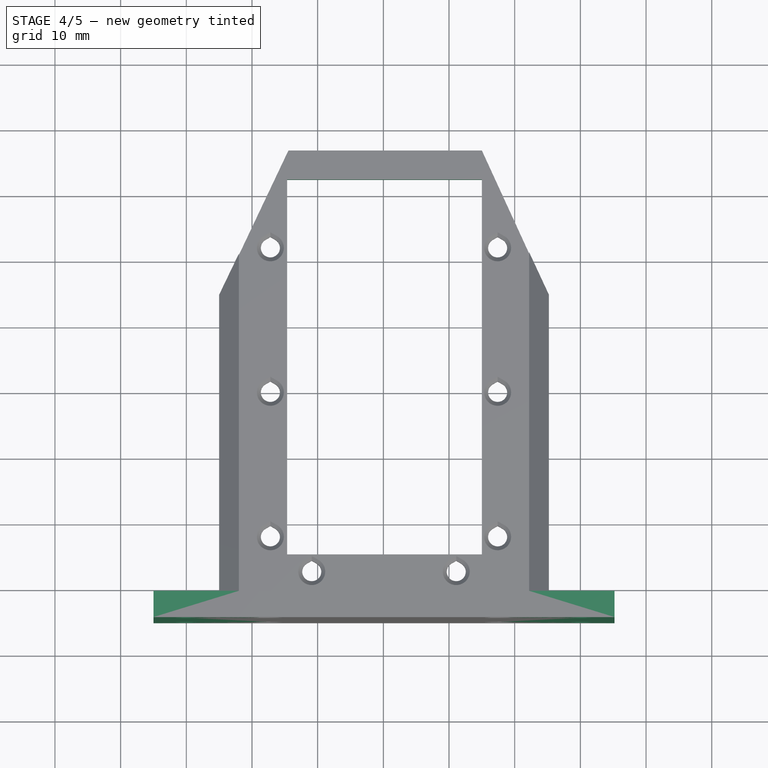
[diagram: stage 4 of 5 — top view after this stage's code; geometry added in this stage tinted green]
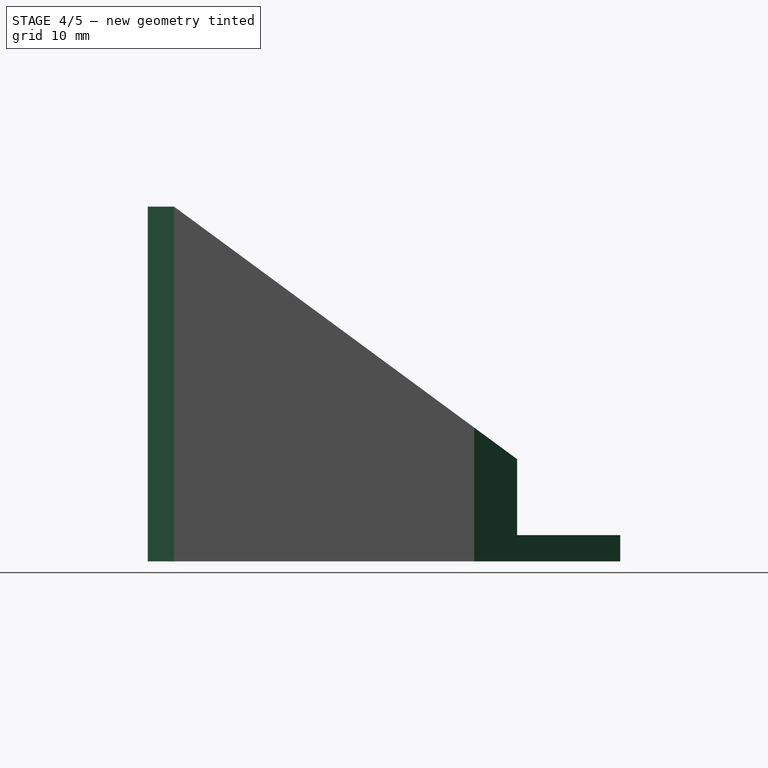
[diagram: stage 4 of 5 — right view after this stage's code; geometry added in this stage tinted green]
FEATURE [Sketcher::SketchObject] Sketch008
  ArcFitTolerance = 1e-06
  FullyConstrained = true
  MakeInternals = false
  MapMode = 5
  Placement = pos=(0,0,4) rot=(0,0,1;0rad)
  sketch-geometry (8):
    g0: LineSegment [constr] StartX=5.74912 StartY=62.1 StartZ=0 EndX=5.74912 EndY=62.5 EndZ=0
    g1: LineSegment [constr] StartX=5.74912 StartY=62.5 StartZ=0 EndX=5.34912 EndY=62.5 EndZ=0
    g2: LineSegment [constr] StartX=34.6 StartY=5.82153 StartZ=0 EndX=35 EndY=5.82153 EndZ=0
    g3: LineSegment [constr] StartX=35 StartY=5.82153 StartZ=0 EndX=35 EndY=5.42153 EndZ=0
    g4: LineSegment StartX=35 StartY=5.42153 StartZ=0 EndX=35 EndY=62.5 EndZ=0
    g5: LineSegment StartX=35 StartY=62.5 StartZ=0 EndX=5.34912 EndY=62.5 EndZ=0
    g6: LineSegment StartX=5.34912 StartY=62.5 StartZ=0 EndX=5.34912 EndY=5.42153 EndZ=0
    g7: LineSegment StartX=5.34912 StartY=5.42153 StartZ=0 EndX=35 EndY=5.42153 EndZ=0
  constraints (22):
    c: Distance(g0) = 0.4
    c: Coincident(g0,g-4)
    c: Vertical(g0)
    c: Distance(g1) = 0.4
    c: Coincident(g1,g0)
    c: Horizontal(g1)
    c: Distance(g2) = 0.4
    c: Coincident(g2,g-6)
    c: Horizontal(g2)
    c: Distance(g3) = 0.4
    c: Coincident(g3,g2)
    c: Vertical(g3)
    c: Coincident(g4,g5)
    c: Coincident(g5,g6)
    c: Coincident(g6,g7)
    c: Coincident(g7,g4)
    c: Vertical(g4)
    c: Vertical(g6)
    c: Horizontal(g5)
    c: Horizontal(g7)
    c: Coincident(g4,g3)
    c: Coincident(g5,g1)
FEATURE [PartDesign::Pocket] Pocket002
  BaseFeature = -> Pocket001
  Direction = (0,0,-1)
  Length = 8
  Length2 = 5
  Profile = -> Sketch008
  ReferenceAxis = -> Sketch008 [N_Axis]
  Refine = true
  Suppressed = false
  Type = 0
FEATURE [Sketcher::SketchObject] Sketch009
  ArcFitTolerance = 1e-06
  AttachmentSupport = -> [Pocket002]
  ExternalGeometry = -> [Pocket002]
  FullyConstrained = true
  MakeInternals = false
  MapMode = 5
  Placement = pos=(-5,0,0) rot=(0.57735,-0.57735,-0.57735;2.0944rad)
  sketch-geometry (4):
    g0: LineSegment StartX=5 StartY=54 StartZ=0 EndX=5 EndY=0 EndZ=0
    g1: LineSegment StartX=5 StartY=54 StartZ=0 EndX=1 EndY=54 EndZ=0
    g2: LineSegment StartX=1 StartY=54 StartZ=0 EndX=1 EndY=-7.1e-15 EndZ=0
    g3: LineSegment StartX=1 StartY=-7.1e-15 StartZ=0 EndX=5 EndY=0 EndZ=0
  constraints (9):
    c: Coincident(g0,g-4)
    c: Coincident(g0,g-3)
    c: Coincident(g1,g0)
    c: Coincident(g1,g-4)
    c: Coincident(g2,g1)
    c: Vertical(g2)
    c: Equal(g2,g0)
    c: Coincident(g3,g2)
    c: Coincident(g3,g0)
FEATURE [PartDesign::Pad] Pad009
  BaseFeature = -> Pocket002
  Direction = (-1,0,0)
  Length = 10
  Length2 = 10
  Profile = -> Sketch009
  ReferenceAxis = -> Sketch009 [N_Axis]
  Refine = true
  Suppressed = false
  Type = 0
FEATURE [Sketcher::SketchObject] Sketch010
  ArcFitTolerance = 1e-06
  AttachmentSupport = -> [Pad009]
  ExternalGeometry = -> [Pad009]
  FullyConstrained = true
  MakeInternals = false
  MapMode = 5
  Placement = pos=(45.2,0,0) rot=(0.57735,0.57735,0.57735;2.0944rad)
  sketch-geometry (4):
    g0: LineSegment StartX=-5 StartY=0 StartZ=0 EndX=-5 EndY=54 EndZ=0
    g1: LineSegment StartX=-5 StartY=54 StartZ=0 EndX=-1 EndY=54 EndZ=0
    g2: LineSegment StartX=-1 StartY=54 StartZ=0 EndX=-1 EndY=0 EndZ=0
    g3: LineSegment StartX=-1 StartY=0 StartZ=0 EndX=-5 EndY=0 EndZ=0
  constraints (9):
    c: Coincident(g0,g-3)
    c: Coincident(g0,g-4)
    c: Coincident(g1,g0)
    c: Coincident(g1,g-4)
    c: Coincident(g2,g1)
    c: Vertical(g2)
    c: Equal(g2,g0)
    c: Coincident(g3,g2)
    c: Coincident(g3,g0)
FEATURE [PartDesign::Pad] Pad010
  BaseFeature = -> Pad009
  Direction = (1,0,0)
  Length = 10
  Length2 = 10
  Profile = -> Sketch010
  ReferenceAxis = -> Sketch010 [N_Axis]
  Refine = true
  Suppressed = false
  Type = 0
FEATURE [Sketcher::SketchObject] Sketch011
  ArcFitTolerance = 1e-06
  AttachmentSupport = -> [Pad010]
  ExternalGeometry = -> [Pad010]
  FullyConstrained = true
  MakeInternals = false
  MapMode = 5
  Placement = pos=(0,-5,0) rot=(1,0,0;1.5708rad)
  sketch-geometry (12):
    g0: LineSegment [constr] StartX=55.2 StartY=54 StartZ=0 EndX=50.2 EndY=54 EndZ=0
    g1: LineSegment [constr] StartX=50.2 StartY=54 StartZ=0 EndX=50.2 EndY=0 EndZ=0
    g2: LineSegment [constr] StartX=37.7 StartY=49 StartZ=0 EndX=50.2 EndY=49 EndZ=0
    g3: LineSegment [constr] StartX=37.7 StartY=9 StartZ=0 EndX=50.2 EndY=9 EndZ=0
    g4: LineSegment [constr] StartX=-15 StartY=54 StartZ=0 EndX=-10 EndY=54 EndZ=0
    g5: LineSegment [constr] StartX=-10 StartY=54 StartZ=0 EndX=-10 EndY=0 EndZ=0
    g6: LineSegment [constr] StartX=37.7 StartY=49 StartZ=0 EndX=-10 EndY=49 EndZ=0
    g7: LineSegment [constr] StartX=37.7 StartY=9 StartZ=0 EndX=-10 EndY=9 EndZ=0
    g8: Circle CenterX=50.2 CenterY=49 CenterZ=0 NormalX=0 NormalY=0 NormalZ=1 AngleXU=0 Radius=1.5
    g9: Circle CenterX=50.2 CenterY=9 CenterZ=0 NormalX=0 NormalY=0 NormalZ=1 AngleXU=0 Radius=1.5
    g10: Circle CenterX=-10 CenterY=9 CenterZ=0 NormalX=0 NormalY=0 NormalZ=1 AngleXU=0 Radius=1.5
    g11: Circle CenterX=-10 CenterY=49 CenterZ=0 NormalX=0 NormalY=0 NormalZ=1 AngleXU=0 Radius=1.5
  constraints (32):
    c: Distance(g0) = 5
    c: Coincident(g0,g-3)
    c: Horizontal(g0)
    c: Coincident(g1,g0)
    c: PointOnObject(g1,g-1)
    c: Vertical(g1)
    c: Coincident(g2,g-5)
    c: PointOnObject(g2,g1)
    c: Horizontal(g2)
    c: Coincident(g3,g-6)
    c: PointOnObject(g3,g1)
    c: Horizontal(g3)
    c: Coincident(g4,g-4)
    c: Horizontal(g4)
    c: Equal(g4,g0)
    c: Coincident(g5,g4)
    c: PointOnObject(g5,g-1)
    c: Vertical(g5)
    c: Coincident(g6,g2)
    c: PointOnObject(g6,g5)
    c: Horizontal(g6)
    c: Coincident(g7,g3)
    c: PointOnObject(g7,g5)
    c: Horizontal(g7)
    c: Diameter(g8) = 3
    c: Coincident(g8,g2)
    c: Coincident(g9,g3)
    c: Coincident(g10,g7)
    c: Coincident(g11,g6)
    c: Equal(g9,g8)
    c: Equal(g10,g8)
    c: Equal(g11,g8)
FEATURE [PartDesign::Hole] Hole002
  BaseFeature = -> Pad010
  CustomThreadClearance = 0
  Depth = 25
  DepthType = 0
  Diameter = 3.4
  DrillForDepth = false
  DrillPoint = 1
  DrillPointAngle = 118
  HoleCutCountersinkAngle = 90
  HoleCutCustomValues = false
  HoleCutDepth = 0
  HoleCutDiameter = 6.1
  HoleCutType = 0
  ModelThread = false
  Profile = -> Sketch011
  Refine = true
  Suppressed = false
  Tapered = false
  TaperedAngle = 90
  ThreadClass = 0
  ThreadDepth = 25
  ThreadDepthType = 0
  ThreadDirection = 0
  ThreadFit = 0
  ThreadSize = 9
  ThreadType = 1
  Threaded = false
  UseCustomThreadClearance = false
FEATURE [Sketcher::SketchObject] Sketch012
  ArcFitTolerance = 1e-06
  AttachmentSupport = -> [Hole002]
  ExternalGeometry = -> [Hole002]
  FullyConstrained = false
  MakeInternals = false
  MapMode = 5
  Placement = pos=(0,0,-3e-16) rot=(1,0,0;3.14159rad)
  sketch-geometry (12):
    g0: Circle [constr] CenterX=35 CenterY=-62.5 CenterZ=0 NormalX=0 NormalY=0 NormalZ=1 AngleXU=0 Radius=4.42153
    g1: LineSegment [constr] StartX=35 StartY=-62.5 StartZ=0 EndX=35 EndY=-66.9215 EndZ=0
    g2: LineSegment [constr] StartX=35 StartY=-62.5 StartZ=0 EndX=38.1265 EndY=-65.6265 EndZ=0
    g3: LineSegment [constr] StartX=35 StartY=-66.9215 StartZ=0 EndX=45.2 EndY=-44.6925 EndZ=0
    g4: Circle [constr] CenterX=37.4 CenterY=-52.1 CenterZ=0 NormalX=0 NormalY=0 NormalZ=1 AngleXU=0 Radius=4
    g5: LineSegment [constr] StartX=20.1746 StartY=-62.5 StartZ=0 EndX=20.1746 EndY=15.0886 EndZ=0
    g6: LineSegment StartX=45.2 StartY=-66.9215 StartZ=0 EndX=45.2 EndY=-44.6925 EndZ=0
    g7: LineSegment StartX=35 StartY=-66.9215 StartZ=0 EndX=45.2 EndY=-66.9215 EndZ=0
    g8: LineSegment StartX=35 StartY=-66.9215 StartZ=0 EndX=45.2 EndY=-44.6925 EndZ=0
    g9: LineSegment StartX=-6.8768 StartY=-40.7116 StartZ=0 EndX=-8.64539 EndY=-69.4398 EndZ=0
    g10: LineSegment StartX=-8.64539 StartY=-69.4398 StartZ=0 EndX=5.54912 EndY=-66.9215 EndZ=0
    g11: LineSegment StartX=-6.8768 StartY=-40.7116 StartZ=0 EndX=5.54912 EndY=-66.9215 EndZ=0
  constraints (25):
    c: Coincident(g0,g-3)
    c: Tangent(g0,g-4)
    c: Coincident(g1,g0)
    c: PointOnObject(g1,g0)
    c: Vertical(g1)
    c: Coincident(g2,g0)
    c: PointOnObject(g2,g0)
    c: Angle(g1,g2) = 0.785398
    c: Coincident(g3,g1)
    c: Diameter(g4) = 8
    c: Coincident(g4,g-6)
    c: Tangent(g3,g4)
    c: PointOnObject(g3,g-5)
    c: Symmetric(g-3,g-3,g5)
    c: Vertical(g5)
    c: Coincident(g6,g3)
    c: Vertical(g6)
    c: Coincident(g7,g1)
    c: Coincident(g7,g6)
    c: Horizontal(g7)
    c: Coincident(g8,g1)
    c: Coincident(g8,g3)
    c: Coincident(g10,g9)
    c: Coincident(g11,g9)
    c: Coincident(g11,g10)
FEATURE [PartDesign::Pocket] Pocket003
  BaseFeature = -> Hole002
  Direction = (0,0,1)
  Length = 25
  Length2 = 5
  Profile = -> Sketch012
  ReferenceAxis = -> Sketch012 [N_Axis]
  Refine = true
  Suppressed = false
  Type = 0
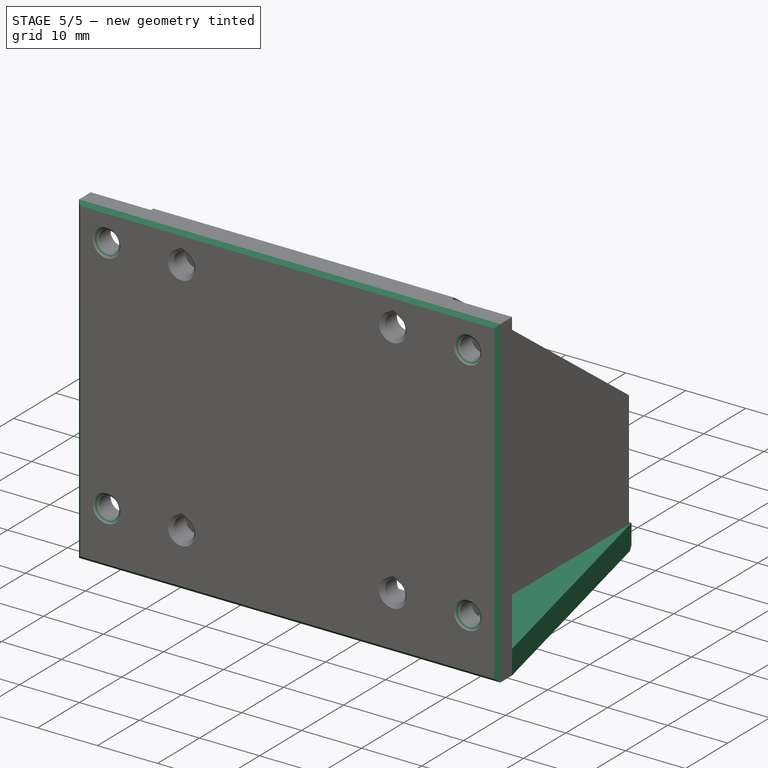
[diagram: stage 5 of 5 — iso view after this stage's code; geometry added in this stage tinted green]
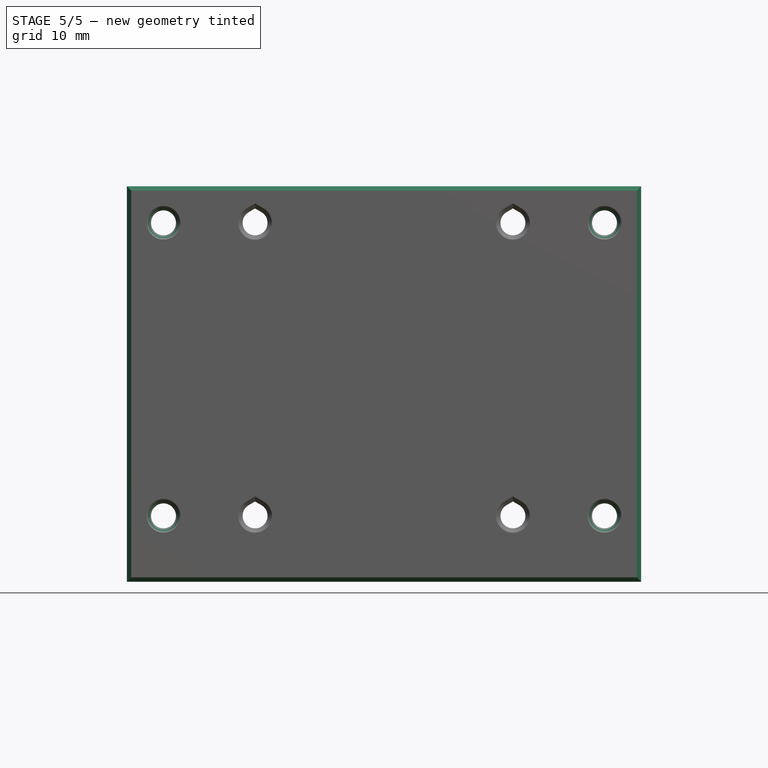
[diagram: stage 5 of 5 — front view after this stage's code; geometry added in this stage tinted green]
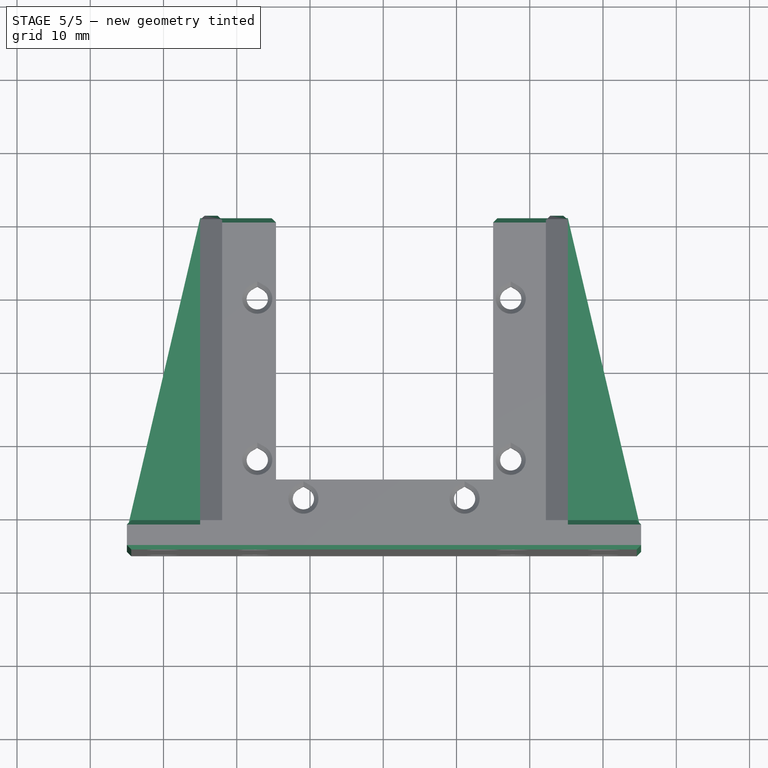
[diagram: stage 5 of 5 — top view after this stage's code; geometry added in this stage tinted green]
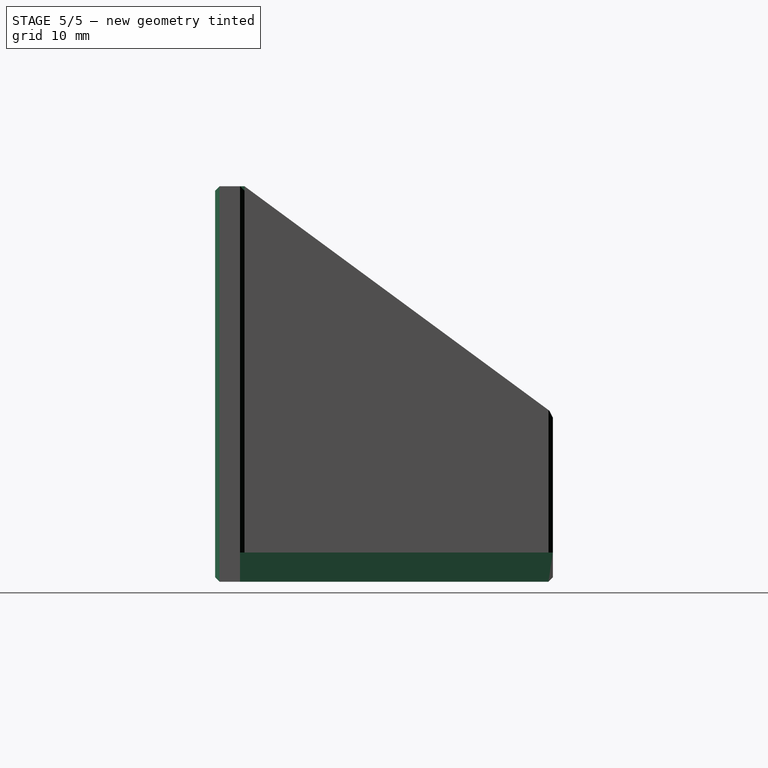
[diagram: stage 5 of 5 — right view after this stage's code; geometry added in this stage tinted green]
FEATURE [PartDesign::Chamfer] Chamfer002
  Angle = 45
  Base = -> Pocket003 [Edge296,Edge321,Edge322,Edge297,Edge305,Edge300,Edge319,Edge314]
  BaseFeature = -> Pocket003
  ChamferType = 0
  FlipDirection = false
  Refine = true
  Size = 0.6
  Size2 = 1
  SupportTransform = false
  Suppressed = false
  UseAllEdges = false
FEATURE [PartDesign::Chamfer] Chamfer003
  Angle = 45
  Base = -> Chamfer002 [Edge94,Edge23,Edge19,Edge13,Edge114,Edge4,Edge15,Edge25,Edge2,Edge5]
  BaseFeature = -> Chamfer002
  ChamferType = 0
  FlipDirection = false
  Refine = true
  Size = 0.6
  Size2 = 1
  SupportTransform = false
  Suppressed = false
  UseAllEdges = false
FEATURE [Sketcher::SketchObject] Sketch013
  ArcFitTolerance = 1e-06
  AttachmentSupport = -> [Chamfer003]
  ExternalGeometry = -> [Chamfer003]
  FullyConstrained = true
  MakeInternals = false
  MapMode = 5
  Placement = pos=(0,0,-3e-16) rot=(1,0,0;3.14159rad)
  sketch-geometry (8):
    g0: LineSegment [constr] StartX=2.8 StartY=-30.1 StartZ=0 EndX=2.8 EndY=-52.1 EndZ=0
    g1: LineSegment [constr] StartX=37.4 StartY=-30.1 StartZ=0 EndX=37.4 EndY=-52.1 EndZ=0
    g2: LineSegment StartX=37.4 StartY=-41.1 StartZ=0 EndX=2.8 EndY=-41.1 EndZ=0
    g3: LineSegment StartX=2.8 StartY=-41.1 StartZ=0 EndX=-7.2 EndY=-41.1 EndZ=0
    g4: LineSegment StartX=37.4 StartY=-41.1 StartZ=0 EndX=47.4 EndY=-41.1 EndZ=0
    g5: LineSegment StartX=-7.2 StartY=-41.1 StartZ=0 EndX=-7.2 EndY=-68.1 EndZ=0
    g6: LineSegment StartX=47.4 StartY=-41.1 StartZ=0 EndX=47.4 EndY=-68.1 EndZ=0
    g7: LineSegment StartX=47.4 StartY=-68.1 StartZ=0 EndX=-7.2 EndY=-68.1 EndZ=0
  constraints (20):
    c: Coincident(g0,g-3)
    c: Coincident(g0,g-4)
    c: Coincident(g1,g-5)
    c: Coincident(g1,g-6)
    c: Symmetric(g1,g1,g2)
    c: Symmetric(g0,g0,g2)
    c: Distance(g3) = 10
    c: Coincident(g3,g2)
    c: Horizontal(g3)
    c: Coincident(g4,g2)
    c: Horizontal(g4)
    c: Equal(g4,g3)
    c: Distance(g5) = 27
    c: Coincident(g5,g3)
    c: Vertical(g5)
    c: Coincident(g6,g4)
    c: Vertical(g6)
    c: Equal(g6,g5)
    c: Coincident(g7,g6)
    c: Coincident(g7,g5)
FEATURE [PartDesign::Pocket] Pocket004
  BaseFeature = -> Chamfer003
  Direction = (0,0,1)
  Length = 27
  Length2 = 5
  Profile = -> Sketch013
  ReferenceAxis = -> Sketch013 [N_Axis]
  Refine = true
  Suppressed = false
  Type = 0
FEATURE [Sketcher::SketchObject] Sketch014
  ArcFitTolerance = 1e-06
  AttachmentSupport = -> [Pocket004]
  ExternalGeometry = -> [Pocket004]
  FullyConstrained = true
  MakeInternals = false
  MapMode = 5
  Placement = pos=(0,0,-3e-16) rot=(1,0,0;3.14159rad)
  sketch-geometry (6):
    g0: LineSegment StartX=45.2 StartY=-41.1 StartZ=0 EndX=45.2 EndY=1.6 EndZ=0
    g1: LineSegment StartX=45.2 StartY=1.6 StartZ=0 EndX=55.2 EndY=1.6 EndZ=0
    g2: LineSegment StartX=55.2 StartY=1.6 StartZ=0 EndX=45.2 EndY=-41.1 EndZ=0
    g3: LineSegment StartX=-5 StartY=-41.1 StartZ=0 EndX=-5 EndY=1.6 EndZ=0
    g4: LineSegment StartX=-5 StartY=1.6 StartZ=0 EndX=-15 EndY=1.6 EndZ=0
    g5: LineSegment StartX=-15 StartY=1.6 StartZ=0 EndX=-5 EndY=-41.1 EndZ=0
  constraints (12):
    c: Coincident(g0,g-4)
    c: Coincident(g0,g-3)
    c: Coincident(g1,g0)
    c: Coincident(g1,g-3)
    c: Coincident(g2,g1)
    c: Coincident(g2,g0)
    c: Coincident(g3,g-6)
    c: Coincident(g3,g-5)
    c: Coincident(g4,g3)
    c: Coincident(g4,g-5)
    c: Coincident(g5,g4)
    c: Coincident(g5,g3)
FEATURE [PartDesign::Pad] Pad011
  BaseFeature = -> Pocket004
  Direction = (0,0,-1)
  Length = 4
  Length2 = 10
  Profile = -> Sketch014
  ReferenceAxis = -> Sketch014 [N_Axis]
  Refine = true
  Reversed = true
  Suppressed = false
  Type = 0
FEATURE [PartDesign::Chamfer] Chamfer004
  Angle = 45
  Base = -> Pad011 [Edge125,Edge100,Edge124,Edge123,Edge122,Edge120,Edge238,Edge145,Edge168,Edge237,Edge173,Edge236]
  BaseFeature = -> Pad011
  ChamferType = 0
  FlipDirection = false
  Refine = true
  Size = 0.6
  Size2 = 1
  SupportTransform = false
  Suppressed = false
  UseAllEdges = false
FEATURE [PartDesign::Body] Body
  AllowCompound = false
  Group = -> [Sketch,Pad,Pad001,Pad002,Sketch001,Pad003,Sketch002,Hole,Sketch002_Teardrops,Hole_Teardrops,Pad004,Pad005,Sketch003,Pad006,Sketch004,Pad007,Sketch005,Pad008,Sketch006,Hole001,Sketch006_Teardrops,Pocket,Chamfer,Chamfer001,Sketch007,Pocket001,Sketch008,Pocket002,Sketch009,Pad009,Sketch010,Pad010,Sketch011,Hole002,Sketch012,Pocket003,Chamfer002,Chamfer003,Sketch013,Pocket004,Sketch014,Pad011,+1 more]
  Origin = -> Origin
  Tip = -> Chamfer004
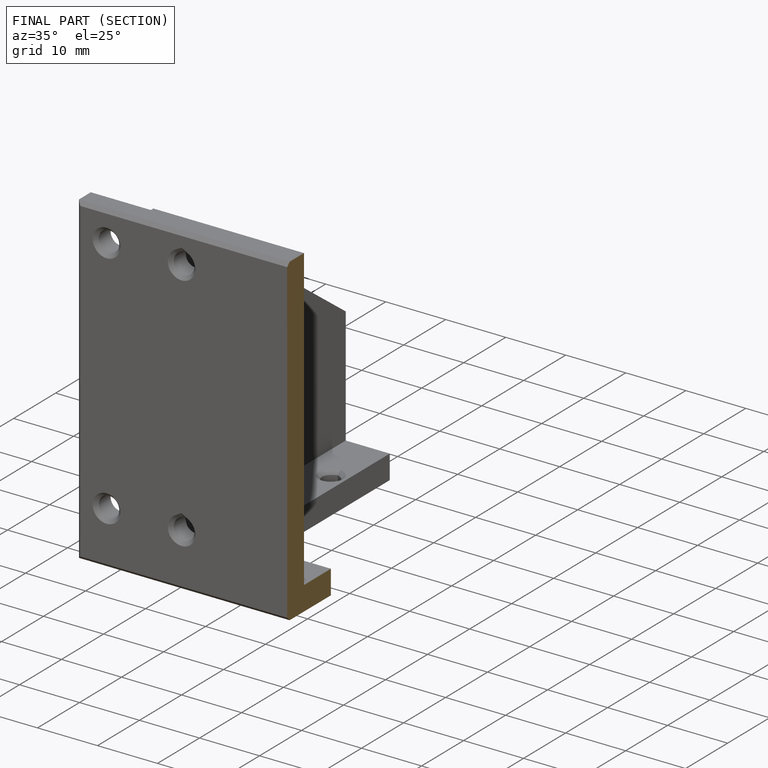
[diagram: finished part — half-section view (interior)]
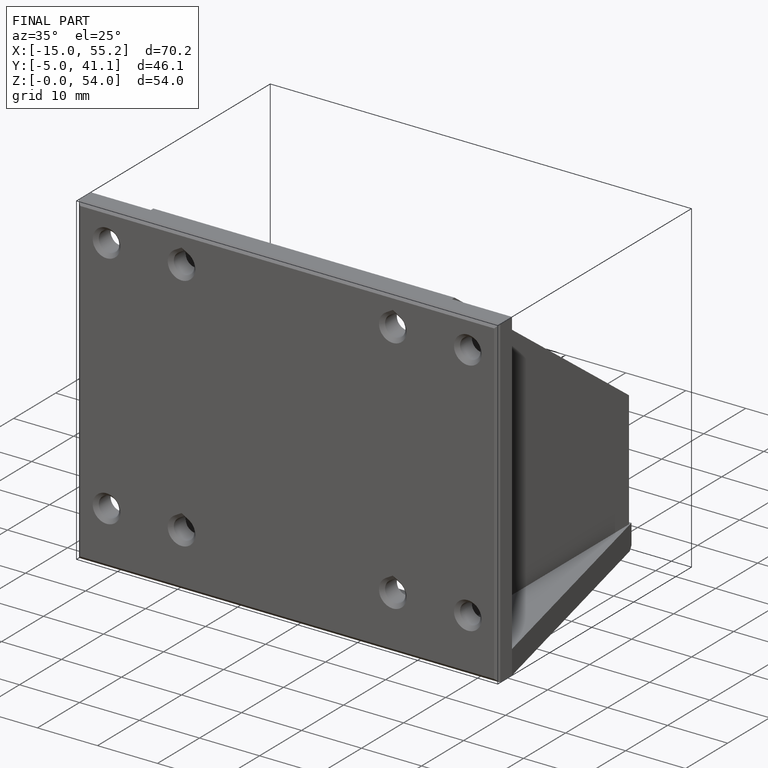
[diagram: finished part — iso view with bounding-box wireframe]
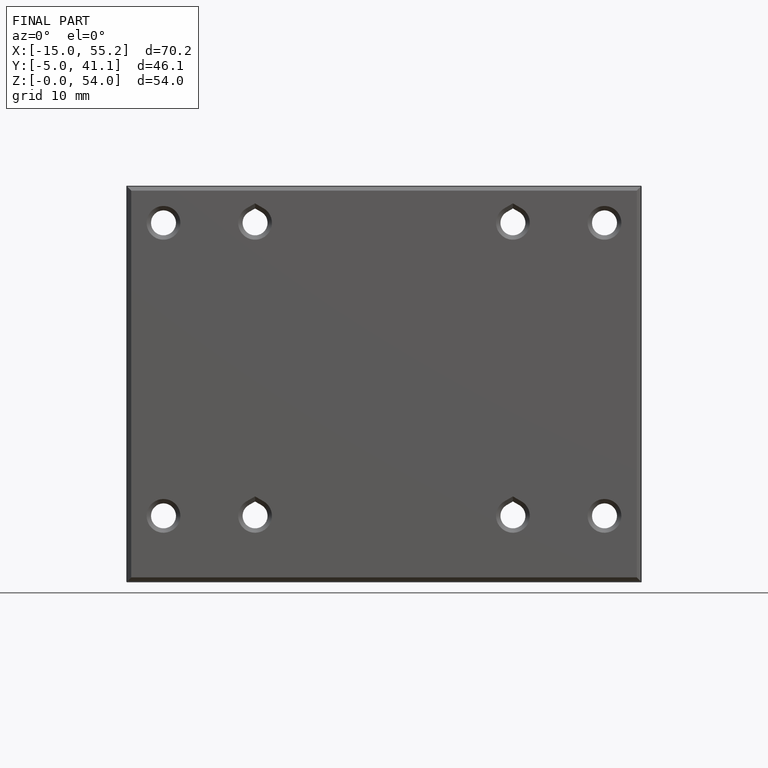
[diagram: finished part — front view with bounding-box wireframe]
